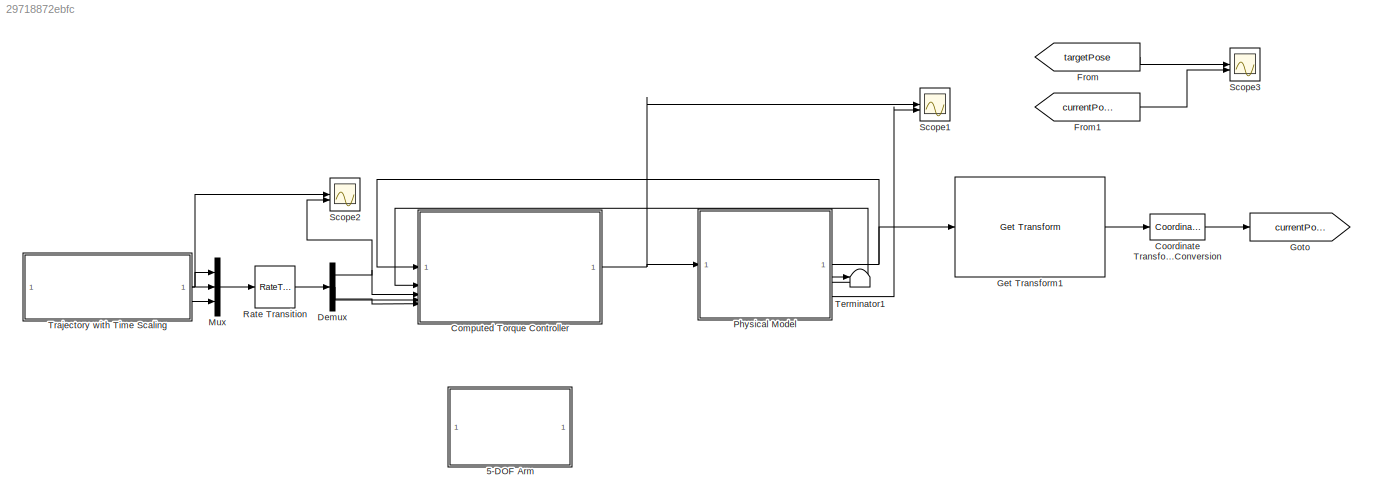
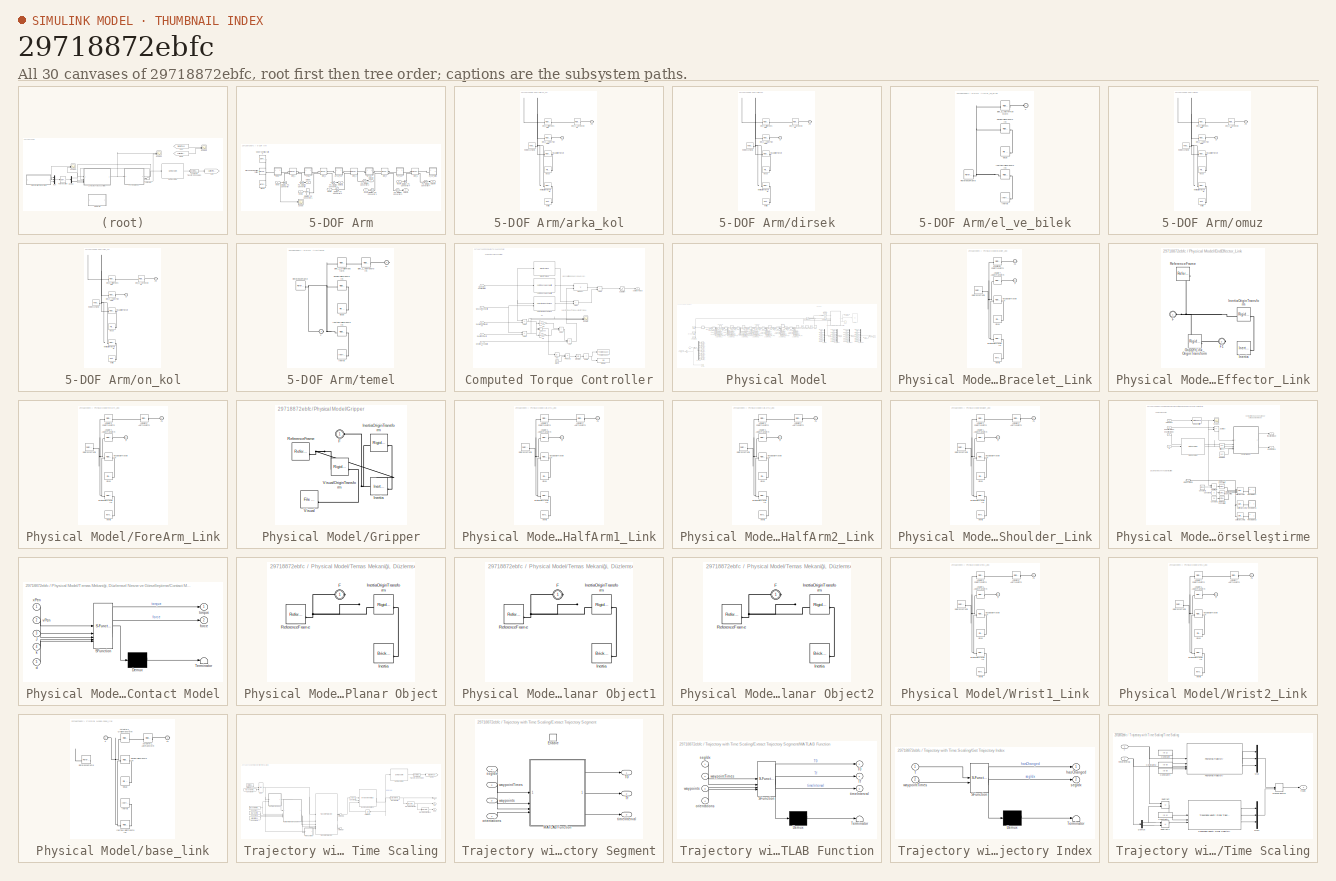
[diagram: thumbnail index - all 30 canvases of the model, root first then tree order]
MODEL slx_29718872ebfc
KIND model
CONFIG AbsTol = auto
CONFIG EnableMultiTasking = off
CONFIG FixedStep = 0.01
CONFIG MaxStep = auto
CONFIG MinStep = auto
CONFIG RelTol = 1e-3
CONFIG SampleTimeConstraint = Unconstrained
CONFIG SolverName = VariableStepAuto
CONFIG StartTime = 0.0
CONFIG StopTime = 48
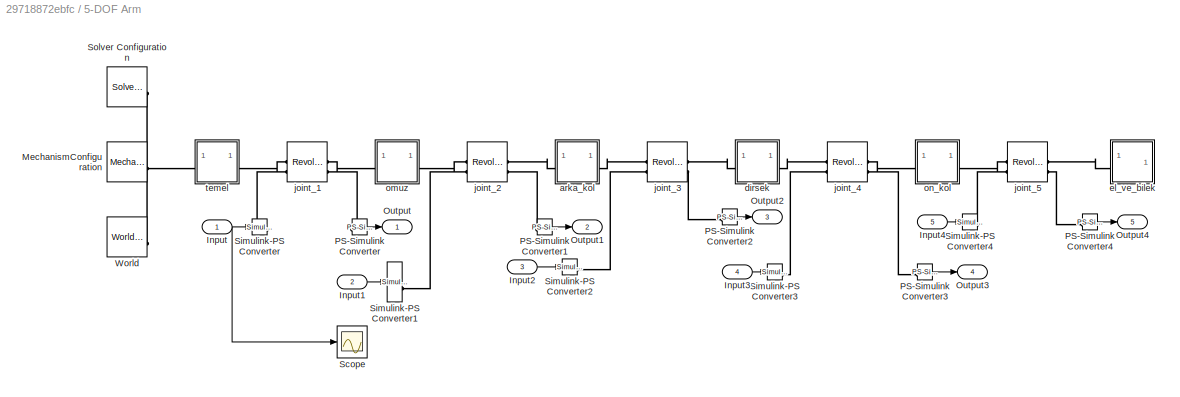
BLOCK [SubSystem] 5-DOF Arm
BLOCK [Inport] 5-DOF Arm/Input
BLOCK [Inport] 5-DOF Arm/Input1
  Port = 2
BLOCK [Inport] 5-DOF Arm/Input2
  Port = 3
BLOCK [Inport] 5-DOF Arm/Input3
  Port = 4
BLOCK [Inport] 5-DOF Arm/Input4
  Port = 5
BLOCK [Reference] 5-DOF Arm/MechanismConfiguration  REF=sm_lib/Utilities/Mechanism
Configuration
  SourceBlock = sm_lib/Utilities/Mechanism\nConfiguration
  SourceType = Mechanism\nConfiguration
BLOCK [Outport] 5-DOF Arm/Output
BLOCK [Outport] 5-DOF Arm/Output1
  Port = 2
BLOCK [Outport] 5-DOF Arm/Output2
  Port = 3
BLOCK [Outport] 5-DOF Arm/Output3
  Port = 4
BLOCK [Outport] 5-DOF Arm/Output4
  Port = 5
BLOCK [Reference] 5-DOF Arm/PS-Simulink Converter  REF=nesl_utility/PS-Simulink
Converter
  SourceBlock = nesl_utility/PS-Simulink\nConverter
  SourceType = PS-Simulink\nConverter
BLOCK [Reference] 5-DOF Arm/PS-Simulink Converter1  REF=nesl_utility/PS-Simulink
Converter
  SourceBlock = nesl_utility/PS-Simulink\nConverter
  SourceType = PS-Simulink\nConverter
BLOCK [Reference] 5-DOF Arm/PS-Simulink Converter2  REF=nesl_utility/PS-Simulink
Converter
  SourceBlock = nesl_utility/PS-Simulink\nConverter
  SourceType = PS-Simulink\nConverter
BLOCK [Reference] 5-DOF Arm/PS-Simulink Converter3  REF=nesl_utility/PS-Simulink
Converter
  SourceBlock = nesl_utility/PS-Simulink\nConverter
  SourceType = PS-Simulink\nConverter
BLOCK [Reference] 5-DOF Arm/PS-Simulink Converter4  REF=nesl_utility/PS-Simulink
Converter
  SourceBlock = nesl_utility/PS-Simulink\nConverter
  SourceType = PS-Simulink\nConverter
BLOCK [Scope] 5-DOF Arm/Scope
  Floating = off
  NumInputPorts = 1
  ScopeSpecificationString = Simulink.scopes.TimeScopeBlockCfg('CurrentConfiguration', extmgr.ConfigurationSet(extmgr.Configuration('Core','General UI',true),extmgr.Configuration('Core','Source UI',true),extmgr.Configuration('Sources','WiredSimulink',true,'DataLoggingVariableName','ScopeData1'),extmgr.Configuration('Visuals','Time Domain',true,'SerializedDisplays',{struct('MinYLimReal','0.00006215','MaxYLimReal','0.00006249',...<+1438ch>
BLOCK [Reference] 5-DOF Arm/Simulink-PS Converter  REF=nesl_utility/Simulink-PS
Converter
  SourceBlock = nesl_utility/Simulink-PS\nConverter
  SourceType = Simulink-PS\nConverter
BLOCK [Reference] 5-DOF Arm/Simulink-PS Converter1  REF=nesl_utility/Simulink-PS
Converter
  SourceBlock = nesl_utility/Simulink-PS\nConverter
  SourceType = Simulink-PS\nConverter
BLOCK [Reference] 5-DOF Arm/Simulink-PS Converter2  REF=nesl_utility/Simulink-PS
Converter
  SourceBlock = nesl_utility/Simulink-PS\nConverter
  SourceType = Simulink-PS\nConverter
BLOCK [Reference] 5-DOF Arm/Simulink-PS Converter3  REF=nesl_utility/Simulink-PS
Converter
  SourceBlock = nesl_utility/Simulink-PS\nConverter
  SourceType = Simulink-PS\nConverter
BLOCK [Reference] 5-DOF Arm/Simulink-PS Converter4  REF=nesl_utility/Simulink-PS
Converter
  SourceBlock = nesl_utility/Simulink-PS\nConverter
  SourceType = Simulink-PS\nConverter
BLOCK [Reference] 5-DOF Arm/Solver Configuration  REF=nesl_utility/Solver
Configuration
  SourceBlock = nesl_utility/Solver\nConfiguration
  SourceType = Solver\nConfiguration
BLOCK [Reference] 5-DOF Arm/World  REF=sm_lib/Frames and
Transforms/World Frame
  SourceBlock = sm_lib/Frames and\nTransforms/World Frame
  SourceType = World Frame
BLOCK [SubSystem] 5-DOF Arm/arka_kol
BLOCK [PMIOPort] 5-DOF Arm/arka_kol/F
  Side = Left
BLOCK [PMIOPort] 5-DOF Arm/arka_kol/F1
  Port = 2
  Side = Right
BLOCK [Reference] 5-DOF Arm/arka_kol/Inertia  REF=sm_lib/Body Elements/Inertia
  SourceBlock = sm_lib/Body Elements/Inertia
  SourceType = Inertia
BLOCK [Reference] 5-DOF Arm/arka_kol/InertiaOriginTransform  REF=sm_lib/Frames and
Transforms/Rigid
Transform
  SourceBlock = sm_lib/Frames and\nTransforms/Rigid\nTransform
  SourceType = Rigid\nTransform
BLOCK [Reference] 5-DOF Arm/arka_kol/ReferenceFrame  REF=sm_lib/Frames and
Transforms/Reference
Frame
  SourceBlock = sm_lib/Frames and\nTransforms/Reference\nFrame
  SourceType = Reference\nFrame
BLOCK [Reference] 5-DOF Arm/arka_kol/Visual  REF=sm_lib/Body Elements/File Solid
  SourceBlock = sm_lib/Body Elements/File Solid
  SourceType = File Solid
BLOCK [Reference] 5-DOF Arm/arka_kol/VisualOriginTransform  REF=sm_lib/Frames and
Transforms/Rigid
Transform
  SourceBlock = sm_lib/Frames and\nTransforms/Rigid\nTransform
  SourceType = Rigid\nTransform
BLOCK [Reference] 5-DOF Arm/arka_kol/joint_2_AxisInvTransform  REF=sm_lib/Frames and
Transforms/Rigid
Transform
  SourceBlock = sm_lib/Frames and\nTransforms/Rigid\nTransform
  SourceType = Rigid\nTransform
BLOCK [Reference] 5-DOF Arm/arka_kol/joint_3_AxisTransform  REF=sm_lib/Frames and
Transforms/Rigid
Transform
  SourceBlock = sm_lib/Frames and\nTransforms/Rigid\nTransform
  SourceType = Rigid\nTransform
BLOCK [Reference] 5-DOF Arm/arka_kol/joint_3_OriginTransform  REF=sm_lib/Frames and
Transforms/Rigid
Transform
  SourceBlock = sm_lib/Frames and\nTransforms/Rigid\nTransform
  SourceType = Rigid\nTransform
BLOCK [SubSystem] 5-DOF Arm/dirsek
BLOCK [PMIOPort] 5-DOF Arm/dirsek/F
  Side = Left
BLOCK [PMIOPort] 5-DOF Arm/dirsek/F1
  Port = 2
  Side = Right
BLOCK [Reference] 5-DOF Arm/dirsek/Inertia  REF=sm_lib/Body Elements/Inertia
  SourceBlock = sm_lib/Body Elements/Inertia
  SourceType = Inertia
BLOCK [Reference] 5-DOF Arm/dirsek/InertiaOriginTransform  REF=sm_lib/Frames and
Transforms/Rigid
Transform
  SourceBlock = sm_lib/Frames and\nTransforms/Rigid\nTransform
  SourceType = Rigid\nTransform
BLOCK [Reference] 5-DOF Arm/dirsek/ReferenceFrame  REF=sm_lib/Frames and
Transforms/Reference
Frame
  SourceBlock = sm_lib/Frames and\nTransforms/Reference\nFrame
  SourceType = Reference\nFrame
BLOCK [Reference] 5-DOF Arm/dirsek/Visual  REF=sm_lib/Body Elements/File Solid
  SourceBlock = sm_lib/Body Elements/File Solid
  SourceType = File Solid
BLOCK [Reference] 5-DOF Arm/dirsek/VisualOriginTransform  REF=sm_lib/Frames and
Transforms/Rigid
Transform
  SourceBlock = sm_lib/Frames and\nTransforms/Rigid\nTransform
  SourceType = Rigid\nTransform
BLOCK [Reference] 5-DOF Arm/dirsek/joint_3_AxisInvTransform  REF=sm_lib/Frames and
Transforms/Rigid
Transform
  SourceBlock = sm_lib/Frames and\nTransforms/Rigid\nTransform
  SourceType = Rigid\nTransform
BLOCK [Reference] 5-DOF Arm/dirsek/joint_4_AxisTransform  REF=sm_lib/Frames and
Transforms/Rigid
Transform
  SourceBlock = sm_lib/Frames and\nTransforms/Rigid\nTransform
  SourceType = Rigid\nTransform
BLOCK [Reference] 5-DOF Arm/dirsek/joint_4_OriginTransform  REF=sm_lib/Frames and
Transforms/Rigid
Transform
  SourceBlock = sm_lib/Frames and\nTransforms/Rigid\nTransform
  SourceType = Rigid\nTransform
BLOCK [SubSystem] 5-DOF Arm/el_ve_bilek
BLOCK [PMIOPort] 5-DOF Arm/el_ve_bilek/F
  Side = Left
BLOCK [Reference] 5-DOF Arm/el_ve_bilek/Inertia  REF=sm_lib/Body Elements/Inertia
  SourceBlock = sm_lib/Body Elements/Inertia
  SourceType = Inertia
BLOCK [Reference] 5-DOF Arm/el_ve_bilek/InertiaOriginTransform  REF=sm_lib/Frames and
Transforms/Rigid
Transform
  SourceBlock = sm_lib/Frames and\nTransforms/Rigid\nTransform
  SourceType = Rigid\nTransform
BLOCK [Reference] 5-DOF Arm/el_ve_bilek/ReferenceFrame  REF=sm_lib/Frames and
Transforms/Reference
Frame
  SourceBlock = sm_lib/Frames and\nTransforms/Reference\nFrame
  SourceType = Reference\nFrame
BLOCK [Reference] 5-DOF Arm/el_ve_bilek/Visual  REF=sm_lib/Body Elements/File Solid
  SourceBlock = sm_lib/Body Elements/File Solid
  SourceType = File Solid
BLOCK [Reference] 5-DOF Arm/el_ve_bilek/VisualOriginTransform  REF=sm_lib/Frames and
Transforms/Rigid
Transform
  SourceBlock = sm_lib/Frames and\nTransforms/Rigid\nTransform
  SourceType = Rigid\nTransform
BLOCK [Reference] 5-DOF Arm/el_ve_bilek/joint_5_AxisInvTransform  REF=sm_lib/Frames and
Transforms/Rigid
Transform
  SourceBlock = sm_lib/Frames and\nTransforms/Rigid\nTransform
  SourceType = Rigid\nTransform
BLOCK [Reference] 5-DOF Arm/joint_1  REF=sm_lib/Joints/Revolute Joint
  SourceBlock = sm_lib/Joints/Revolute Joint
  SourceType = Revolute Joint
BLOCK [Reference] 5-DOF Arm/joint_2  REF=sm_lib/Joints/Revolute Joint
  SourceBlock = sm_lib/Joints/Revolute Joint
  SourceType = Revolute Joint
BLOCK [Reference] 5-DOF Arm/joint_3  REF=sm_lib/Joints/Revolute Joint
  SourceBlock = sm_lib/Joints/Revolute Joint
  SourceType = Revolute Joint
BLOCK [Reference] 5-DOF Arm/joint_4  REF=sm_lib/Joints/Revolute Joint
  SourceBlock = sm_lib/Joints/Revolute Joint
  SourceType = Revolute Joint
BLOCK [Reference] 5-DOF Arm/joint_5  REF=sm_lib/Joints/Revolute Joint
  SourceBlock = sm_lib/Joints/Revolute Joint
  SourceType = Revolute Joint
BLOCK [SubSystem] 5-DOF Arm/omuz
BLOCK [PMIOPort] 5-DOF Arm/omuz/F
  Side = Left
BLOCK [PMIOPort] 5-DOF Arm/omuz/F1
  Port = 2
  Side = Right
BLOCK [Reference] 5-DOF Arm/omuz/Inertia  REF=sm_lib/Body Elements/Inertia
  SourceBlock = sm_lib/Body Elements/Inertia
  SourceType = Inertia
BLOCK [Reference] 5-DOF Arm/omuz/InertiaOriginTransform  REF=sm_lib/Frames and
Transforms/Rigid
Transform
  SourceBlock = sm_lib/Frames and\nTransforms/Rigid\nTransform
  SourceType = Rigid\nTransform
BLOCK [Reference] 5-DOF Arm/omuz/ReferenceFrame  REF=sm_lib/Frames and
Transforms/Reference
Frame
  SourceBlock = sm_lib/Frames and\nTransforms/Reference\nFrame
  SourceType = Reference\nFrame
BLOCK [Reference] 5-DOF Arm/omuz/Visual  REF=sm_lib/Body Elements/File Solid
  SourceBlock = sm_lib/Body Elements/File Solid
  SourceType = File Solid
BLOCK [Reference] 5-DOF Arm/omuz/VisualOriginTransform  REF=sm_lib/Frames and
Transforms/Rigid
Transform
  SourceBlock = sm_lib/Frames and\nTransforms/Rigid\nTransform
  SourceType = Rigid\nTransform
BLOCK [Reference] 5-DOF Arm/omuz/joint_1_AxisInvTransform  REF=sm_lib/Frames and
Transforms/Rigid
Transform
  SourceBlock = sm_lib/Frames and\nTransforms/Rigid\nTransform
  SourceType = Rigid\nTransform
BLOCK [Reference] 5-DOF Arm/omuz/joint_2_AxisTransform  REF=sm_lib/Frames and
Transforms/Rigid
Transform
  SourceBlock = sm_lib/Frames and\nTransforms/Rigid\nTransform
  SourceType = Rigid\nTransform
BLOCK [Reference] 5-DOF Arm/omuz/joint_2_OriginTransform  REF=sm_lib/Frames and
Transforms/Rigid
Transform
  SourceBlock = sm_lib/Frames and\nTransforms/Rigid\nTransform
  SourceType = Rigid\nTransform
BLOCK [SubSystem] 5-DOF Arm/on_kol
BLOCK [PMIOPort] 5-DOF Arm/on_kol/F
  Side = Left
BLOCK [PMIOPort] 5-DOF Arm/on_kol/F1
  Port = 2
  Side = Right
BLOCK [Reference] 5-DOF Arm/on_kol/Inertia  REF=sm_lib/Body Elements/Inertia
  SourceBlock = sm_lib/Body Elements/Inertia
  SourceType = Inertia
BLOCK [Reference] 5-DOF Arm/on_kol/InertiaOriginTransform  REF=sm_lib/Frames and
Transforms/Rigid
Transform
  SourceBlock = sm_lib/Frames and\nTransforms/Rigid\nTransform
  SourceType = Rigid\nTransform
BLOCK [Reference] 5-DOF Arm/on_kol/ReferenceFrame  REF=sm_lib/Frames and
Transforms/Reference
Frame
  SourceBlock = sm_lib/Frames and\nTransforms/Reference\nFrame
  SourceType = Reference\nFrame
BLOCK [Reference] 5-DOF Arm/on_kol/Visual  REF=sm_lib/Body Elements/File Solid
  SourceBlock = sm_lib/Body Elements/File Solid
  SourceType = File Solid
BLOCK [Reference] 5-DOF Arm/on_kol/VisualOriginTransform  REF=sm_lib/Frames and
Transforms/Rigid
Transform
  SourceBlock = sm_lib/Frames and\nTransforms/Rigid\nTransform
  SourceType = Rigid\nTransform
BLOCK [Reference] 5-DOF Arm/on_kol/joint_4_AxisInvTransform  REF=sm_lib/Frames and
Transforms/Rigid
Transform
  SourceBlock = sm_lib/Frames and\nTransforms/Rigid\nTransform
  SourceType = Rigid\nTransform
BLOCK [Reference] 5-DOF Arm/on_kol/joint_5_AxisTransform  REF=sm_lib/Frames and
Transforms/Rigid
Transform
  SourceBlock = sm_lib/Frames and\nTransforms/Rigid\nTransform
  SourceType = Rigid\nTransform
BLOCK [Reference] 5-DOF Arm/on_kol/joint_5_OriginTransform  REF=sm_lib/Frames and
Transforms/Rigid
Transform
  SourceBlock = sm_lib/Frames and\nTransforms/Rigid\nTransform
  SourceType = Rigid\nTransform
BLOCK [SubSystem] 5-DOF Arm/temel
BLOCK [PMIOPort] 5-DOF Arm/temel/F
  Side = Left
BLOCK [PMIOPort] 5-DOF Arm/temel/F1
  Port = 2
  Side = Right
BLOCK [Reference] 5-DOF Arm/temel/Inertia  REF=sm_lib/Body Elements/Inertia
  SourceBlock = sm_lib/Body Elements/Inertia
  SourceType = Inertia
BLOCK [Reference] 5-DOF Arm/temel/InertiaOriginTransform  REF=sm_lib/Frames and
Transforms/Rigid
Transform
  SourceBlock = sm_lib/Frames and\nTransforms/Rigid\nTransform
  SourceType = Rigid\nTransform
BLOCK [Reference] 5-DOF Arm/temel/ReferenceFrame  REF=sm_lib/Frames and
Transforms/Reference
Frame
  SourceBlock = sm_lib/Frames and\nTransforms/Reference\nFrame
  SourceType = Reference\nFrame
BLOCK [Reference] 5-DOF Arm/temel/Visual  REF=sm_lib/Body Elements/File Solid
  SourceBlock = sm_lib/Body Elements/File Solid
  SourceType = File Solid
BLOCK [Reference] 5-DOF Arm/temel/VisualOriginTransform  REF=sm_lib/Frames and
Transforms/Rigid
Transform
  SourceBlock = sm_lib/Frames and\nTransforms/Rigid\nTransform
  SourceType = Rigid\nTransform
BLOCK [Reference] 5-DOF Arm/temel/joint_1_AxisTransform  REF=sm_lib/Frames and
Transforms/Rigid
Transform
  SourceBlock = sm_lib/Frames and\nTransforms/Rigid\nTransform
  SourceType = Rigid\nTransform
BLOCK [Reference] 5-DOF Arm/temel/joint_1_OriginTransform  REF=sm_lib/Frames and
Transforms/Rigid
Transform
  SourceBlock = sm_lib/Frames and\nTransforms/Rigid\nTransform
  SourceType = Rigid\nTransform
BLOCK [SubSystem] Computed Torque Controller
BLOCK [Abs] Computed Torque Controller/Abs
  Commented = on
  SaturateOnIntegerOverflow = off
BLOCK [Sum] Computed Torque Controller/Add
  IconShape = rectangular
  Inputs = -+
BLOCK [Sum] Computed Torque Controller/Add1
  IconShape = rectangular
BLOCK [Sum] Computed Torque Controller/Add2
  IconShape = rectangular
  Inputs = +-
BLOCK [Sum] Computed Torque Controller/Add3
  IconShape = rectangular
  Inputs = +-
BLOCK [Sum] Computed Torque Controller/Add4
  IconShape = rectangular
BLOCK [Sum] Computed Torque Controller/Add5
  IconShape = rectangular
BLOCK [Outport] Computed Torque Controller/Applied Torque
  VectorParamsAs1DForOutWhenUnconnected = off
BLOCK [Clock] Computed Torque Controller/Clock
  Commented = on
BLOCK [Inport] Computed Torque Controller/Desired Acceleration
  Port = 5
BLOCK [Inport] Computed Torque Controller/Desired Configuration
  Port = 3
BLOCK [Inport] Computed Torque Controller/Desired Velocity
  Port = 4
BLOCK [Display] Computed Torque Controller/Display
  Commented = on
  Decimation = 1
BLOCK [Reference] Computed Torque Controller/Gravity Torque  REF=robotmaniplib/Gravity Torque
  SourceBlock = robotmaniplib/Gravity Torque
  SourceType = Gravity Torque
BLOCK [Integrator] Computed Torque Controller/Integrator
  Commented = on
BLOCK [Reference] Computed Torque Controller/Joint Space Mass Matrix  REF=robotmaniplib/Joint Space Mass Matrix
  SourceBlock = robotmaniplib/Joint Space Mass Matrix
  SourceType = Joint Space Mass Matrix
BLOCK [Gain] Computed Torque Controller/Kd
  Gain = K(2)
BLOCK [Gain] Computed Torque Controller/Kp
  Gain = K(1)
BLOCK [Inport] Computed Torque Controller/Measured Configuration
  NameLocation = top
BLOCK [Inport] Computed Torque Controller/Measured Velocities
  Port = 2
BLOCK [Product] Computed Torque Controller/Product
  Multiplication = Matrix(*)
BLOCK [Product] Computed Torque Controller/Product1
  Commented = on
BLOCK [Saturate] Computed Torque Controller/Saturation
  LowerLimit = -100
  UpperLimit = 100
BLOCK [Scope] Computed Torque Controller/Scope
  Floating = off
  NumInputPorts = 3
  ScopeSpecificationString = Simulink.scopes.TimeScopeBlockCfg('CurrentConfiguration', extmgr.ConfigurationSet(extmgr.Configuration('Core','General UI',true),extmgr.Configuration('Core','Source UI',true),extmgr.Configuration('Sources','WiredSimulink',true,'DataLoggingVariableName','ScopeData2'),extmgr.Configuration('Visuals','Time Domain',true,'SerializedDisplays',{struct('MinYLimReal','-346932123326328320.00000','MaxYLimReal...<+2242ch>
BLOCK [Sum] Computed Torque Controller/Sum
  IconShape = rectangular
BLOCK [Sum] Computed Torque Controller/Sum1
  Commented = on
  IconShape = rectangular
  Inputs = +
BLOCK [ToWorkspace] Computed Torque Controller/To Workspace
  Commented = on
  FixptAsFi = on
  MaxDataPoints = inf
  SampleTime = -1
  Save2DSignal = 2-D array (concatenate along first dimension)
  VariableName = ITAE
BLOCK [Reference] Computed Torque Controller/Velocity Product Torque  REF=robotmaniplib/Velocity Product Torque
  SourceBlock = robotmaniplib/Velocity Product Torque
  SourceType = Velocity Product Torque
BLOCK [Reference] Coordinate Transformation Conversion  REF=robotcorelib/Coordinate Transformation Conversion
  LibrarySourceBlock = navlib/Utilities/Coordinate Transformation Conversion
  SourceBlock = robotcorelib/Coordinate Transformation Conversion
  SourceType = robotics.slcore.internal.block.CoordinateTransformationConversion
BLOCK [Demux] Demux
  Outputs = 3
BLOCK [From] From
  GotoTag = targetPose
  TagVisibility = global
BLOCK [From] From1
  GotoTag = currentPose
BLOCK [Reference] Get Transform1  REF=robotmaniplib/Get Transform
  SourceBlock = robotmaniplib/Get Transform
  SourceType = Get Transform
BLOCK [Goto] Goto
  GotoTag = currentPose
BLOCK [Mux] Mux
  DisplayOption = bar
  Inputs = 3
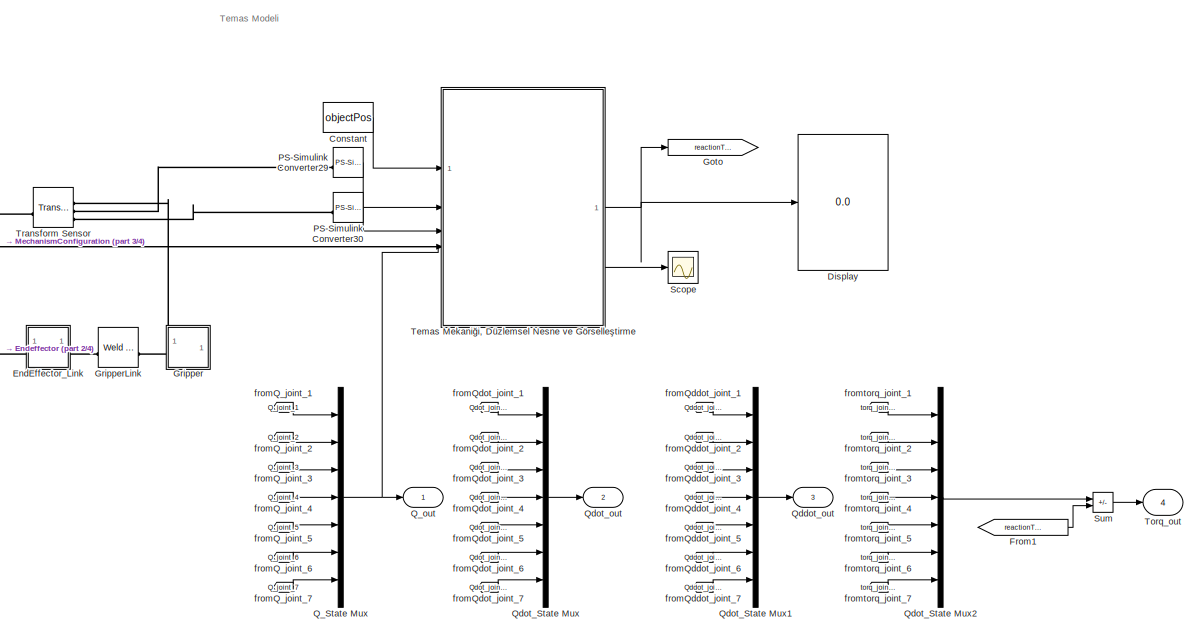
[diagram: Physical Model - part 1/4, top right region]
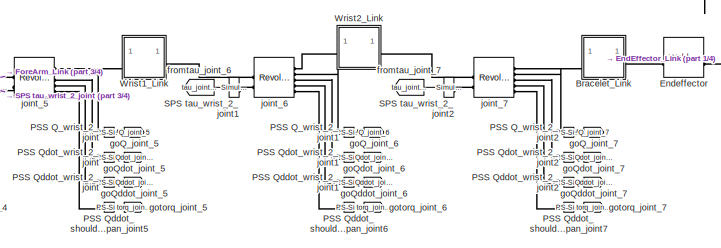
[diagram: Physical Model - part 2/4, central region]
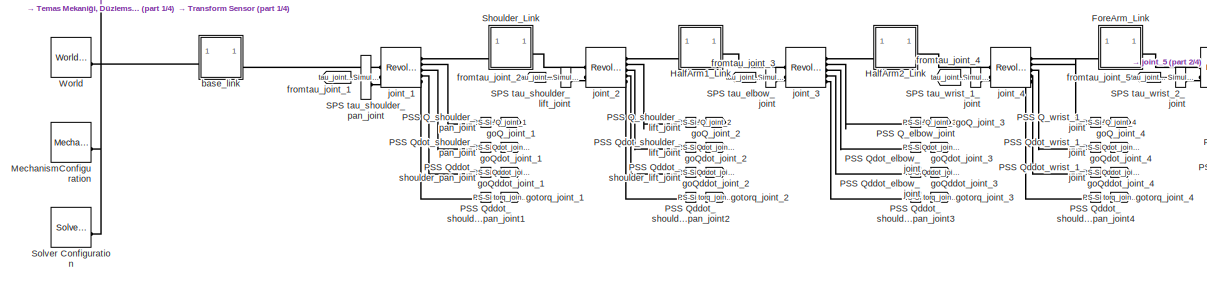
[diagram: Physical Model - part 3/4, middle left region]
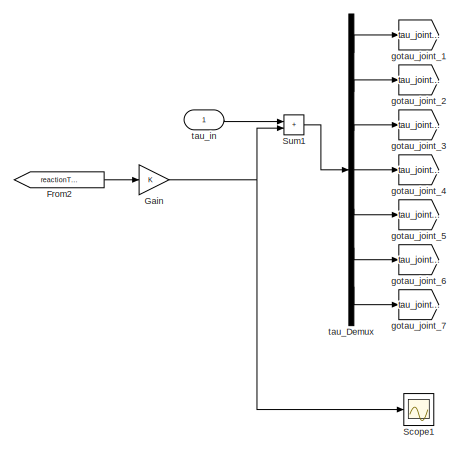
[diagram: Physical Model - part 4/4, bottom left region]
BLOCK [SubSystem] Physical Model
BLOCK [SubSystem] Physical Model/Bracelet_Link
BLOCK [Reference] Physical Model/Bracelet_Link/Actuator7_AxisInvTransform  REF=sm_lib/Frames and
Transforms/Rigid
Transform
  SourceBlock = sm_lib/Frames and\nTransforms/Rigid\nTransform
  SourceType = Rigid\nTransform
BLOCK [Reference] Physical Model/Bracelet_Link/Endeffector_OriginTransform  REF=sm_lib/Frames and
Transforms/Rigid
Transform
  SourceBlock = sm_lib/Frames and\nTransforms/Rigid\nTransform
  SourceType = Rigid\nTransform
BLOCK [PMIOPort] Physical Model/Bracelet_Link/F
  Side = Left
BLOCK [PMIOPort] Physical Model/Bracelet_Link/F1
  Port = 2
  Side = Right
BLOCK [Reference] Physical Model/Bracelet_Link/Inertia  REF=sm_lib/Body Elements/Inertia
  SourceBlock = sm_lib/Body Elements/Inertia
  SourceType = Inertia
BLOCK [Reference] Physical Model/Bracelet_Link/InertiaOriginTransform  REF=sm_lib/Frames and
Transforms/Rigid
Transform
  SourceBlock = sm_lib/Frames and\nTransforms/Rigid\nTransform
  SourceType = Rigid\nTransform
BLOCK [Reference] Physical Model/Bracelet_Link/ReferenceFrame  REF=sm_lib/Frames and
Transforms/Reference
Frame
  SourceBlock = sm_lib/Frames and\nTransforms/Reference\nFrame
  SourceType = Reference\nFrame
BLOCK [Reference] Physical Model/Bracelet_Link/Visual  REF=sm_lib/Body Elements/File Solid
  SourceBlock = sm_lib/Body Elements/File Solid
  SourceType = File Solid
BLOCK [Reference] Physical Model/Bracelet_Link/VisualOriginTransform  REF=sm_lib/Frames and
Transforms/Rigid
Transform
  SourceBlock = sm_lib/Frames and\nTransforms/Rigid\nTransform
  SourceType = Rigid\nTransform
BLOCK [Constant] Physical Model/Constant
  Value = objectPos
BLOCK [Display] Physical Model/Display
  Decimation = 1
BLOCK [SubSystem] Physical Model/EndEffector_Link
BLOCK [PMIOPort] Physical Model/EndEffector_Link/F
  Side = Left
BLOCK [PMIOPort] Physical Model/EndEffector_Link/F1
  Port = 2
  Side = Right
BLOCK [Reference] Physical Model/EndEffector_Link/GripperLink_OriginTransform  REF=sm_lib/Frames and
Transforms/Rigid
Transform
  SourceBlock = sm_lib/Frames and\nTransforms/Rigid\nTransform
  SourceType = Rigid\nTransform
BLOCK [Reference] Physical Model/EndEffector_Link/Inertia  REF=sm_lib/Body Elements/Inertia
  SourceBlock = sm_lib/Body Elements/Inertia
  SourceType = Inertia
BLOCK [Reference] Physical Model/EndEffector_Link/InertiaOriginTransform  REF=sm_lib/Frames and
Transforms/Rigid
Transform
  SourceBlock = sm_lib/Frames and\nTransforms/Rigid\nTransform
  SourceType = Rigid\nTransform
BLOCK [Reference] Physical Model/EndEffector_Link/ReferenceFrame  REF=sm_lib/Frames and
Transforms/Reference
Frame
  SourceBlock = sm_lib/Frames and\nTransforms/Reference\nFrame
  SourceType = Reference\nFrame
BLOCK [Reference] Physical Model/Endeffector  REF=sm_lib/Joints/Weld Joint
  SourceBlock = sm_lib/Joints/Weld Joint
  SourceType = Weld Joint
BLOCK [SubSystem] Physical Model/ForeArm_Link
BLOCK [Reference] Physical Model/ForeArm_Link/Actuator4_AxisInvTransform  REF=sm_lib/Frames and
Transforms/Rigid
Transform
  SourceBlock = sm_lib/Frames and\nTransforms/Rigid\nTransform
  SourceType = Rigid\nTransform
BLOCK [Reference] Physical Model/ForeArm_Link/Actuator5_AxisTransform  REF=sm_lib/Frames and
Transforms/Rigid
Transform
  SourceBlock = sm_lib/Frames and\nTransforms/Rigid\nTransform
  SourceType = Rigid\nTransform
BLOCK [Reference] Physical Model/ForeArm_Link/Actuator5_OriginTransform  REF=sm_lib/Frames and
Transforms/Rigid
Transform
  SourceBlock = sm_lib/Frames and\nTransforms/Rigid\nTransform
  SourceType = Rigid\nTransform
BLOCK [PMIOPort] Physical Model/ForeArm_Link/F
  Side = Left
BLOCK [PMIOPort] Physical Model/ForeArm_Link/F1
  Port = 2
  Side = Right
BLOCK [Reference] Physical Model/ForeArm_Link/Inertia  REF=sm_lib/Body Elements/Inertia
  SourceBlock = sm_lib/Body Elements/Inertia
  SourceType = Inertia
BLOCK [Reference] Physical Model/ForeArm_Link/InertiaOriginTransform  REF=sm_lib/Frames and
Transforms/Rigid
Transform
  SourceBlock = sm_lib/Frames and\nTransforms/Rigid\nTransform
  SourceType = Rigid\nTransform
BLOCK [Reference] Physical Model/ForeArm_Link/ReferenceFrame  REF=sm_lib/Frames and
Transforms/Reference
Frame
  SourceBlock = sm_lib/Frames and\nTransforms/Reference\nFrame
  SourceType = Reference\nFrame
BLOCK [Reference] Physical Model/ForeArm_Link/Visual  REF=sm_lib/Body Elements/File Solid
  SourceBlock = sm_lib/Body Elements/File Solid
  SourceType = File Solid
BLOCK [Reference] Physical Model/ForeArm_Link/VisualOriginTransform  REF=sm_lib/Frames and
Transforms/Rigid
Transform
  SourceBlock = sm_lib/Frames and\nTransforms/Rigid\nTransform
  SourceType = Rigid\nTransform
BLOCK [From] Physical Model/From1
  GotoTag = reactionTorque
BLOCK [From] Physical Model/From2
  GotoTag = reactionTorque
BLOCK [Gain] Physical Model/Gain
BLOCK [Goto] Physical Model/Goto
  GotoTag = reactionTorque
BLOCK [SubSystem] Physical Model/Gripper
BLOCK [PMIOPort] Physical Model/Gripper/F
  Side = Left
BLOCK [Reference] Physical Model/Gripper/Inertia  REF=sm_lib/Body Elements/Inertia
  SourceBlock = sm_lib/Body Elements/Inertia
  SourceType = Inertia
BLOCK [Reference] Physical Model/Gripper/InertiaOriginTransform  REF=sm_lib/Frames and
Transforms/Rigid
Transform
  SourceBlock = sm_lib/Frames and\nTransforms/Rigid\nTransform
  SourceType = Rigid\nTransform
BLOCK [Reference] Physical Model/Gripper/ReferenceFrame  REF=sm_lib/Frames and
Transforms/Reference
Frame
  SourceBlock = sm_lib/Frames and\nTransforms/Reference\nFrame
  SourceType = Reference\nFrame
BLOCK [Reference] Physical Model/Gripper/Visual  REF=sm_lib/Body Elements/File Solid
  SourceBlock = sm_lib/Body Elements/File Solid
  SourceType = File Solid
BLOCK [Reference] Physical Model/Gripper/VisualOriginTransform  REF=sm_lib/Frames and
Transforms/Rigid
Transform
  SourceBlock = sm_lib/Frames and\nTransforms/Rigid\nTransform
  SourceType = Rigid\nTransform
BLOCK [Reference] Physical Model/GripperLink  REF=sm_lib/Joints/Weld Joint
  SourceBlock = sm_lib/Joints/Weld Joint
  SourceType = Weld Joint
BLOCK [SubSystem] Physical Model/HalfArm1_Link
BLOCK [Reference] Physical Model/HalfArm1_Link/Actuator2_AxisInvTransform  REF=sm_lib/Frames and
Transforms/Rigid
Transform
  SourceBlock = sm_lib/Frames and\nTransforms/Rigid\nTransform
  SourceType = Rigid\nTransform
BLOCK [Reference] Physical Model/HalfArm1_Link/Actuator3_AxisTransform  REF=sm_lib/Frames and
Transforms/Rigid
Transform
  SourceBlock = sm_lib/Frames and\nTransforms/Rigid\nTransform
  SourceType = Rigid\nTransform
BLOCK [Reference] Physical Model/HalfArm1_Link/Actuator3_OriginTransform  REF=sm_lib/Frames and
Transforms/Rigid
Transform
  SourceBlock = sm_lib/Frames and\nTransforms/Rigid\nTransform
  SourceType = Rigid\nTransform
BLOCK [PMIOPort] Physical Model/HalfArm1_Link/F
  Side = Left
BLOCK [PMIOPort] Physical Model/HalfArm1_Link/F1
  Port = 2
  Side = Right
BLOCK [Reference] Physical Model/HalfArm1_Link/Inertia  REF=sm_lib/Body Elements/Inertia
  SourceBlock = sm_lib/Body Elements/Inertia
  SourceType = Inertia
BLOCK [Reference] Physical Model/HalfArm1_Link/InertiaOriginTransform  REF=sm_lib/Frames and
Transforms/Rigid
Transform
  SourceBlock = sm_lib/Frames and\nTransforms/Rigid\nTransform
  SourceType = Rigid\nTransform
BLOCK [Reference] Physical Model/HalfArm1_Link/ReferenceFrame  REF=sm_lib/Frames and
Transforms/Reference
Frame
  SourceBlock = sm_lib/Frames and\nTransforms/Reference\nFrame
  SourceType = Reference\nFrame
BLOCK [Reference] Physical Model/HalfArm1_Link/Visual  REF=sm_lib/Body Elements/File Solid
  SourceBlock = sm_lib/Body Elements/File Solid
  SourceType = File Solid
BLOCK [Reference] Physical Model/HalfArm1_Link/VisualOriginTransform  REF=sm_lib/Frames and
Transforms/Rigid
Transform
  SourceBlock = sm_lib/Frames and\nTransforms/Rigid\nTransform
  SourceType = Rigid\nTransform
BLOCK [SubSystem] Physical Model/HalfArm2_Link
BLOCK [Reference] Physical Model/HalfArm2_Link/Actuator3_AxisInvTransform  REF=sm_lib/Frames and
Transforms/Rigid
Transform
  SourceBlock = sm_lib/Frames and\nTransforms/Rigid\nTransform
  SourceType = Rigid\nTransform
BLOCK [Reference] Physical Model/HalfArm2_Link/Actuator4_AxisTransform  REF=sm_lib/Frames and
Transforms/Rigid
Transform
  SourceBlock = sm_lib/Frames and\nTransforms/Rigid\nTransform
  SourceType = Rigid\nTransform
BLOCK [Reference] Physical Model/HalfArm2_Link/Actuator4_OriginTransform  REF=sm_lib/Frames and
Transforms/Rigid
Transform
  SourceBlock = sm_lib/Frames and\nTransforms/Rigid\nTransform
  SourceType = Rigid\nTransform
BLOCK [PMIOPort] Physical Model/HalfArm2_Link/F
  Side = Left
BLOCK [PMIOPort] Physical Model/HalfArm2_Link/F1
  Port = 2
  Side = Right
BLOCK [Reference] Physical Model/HalfArm2_Link/Inertia  REF=sm_lib/Body Elements/Inertia
  SourceBlock = sm_lib/Body Elements/Inertia
  SourceType = Inertia
BLOCK [Reference] Physical Model/HalfArm2_Link/InertiaOriginTransform  REF=sm_lib/Frames and
Transforms/Rigid
Transform
  SourceBlock = sm_lib/Frames and\nTransforms/Rigid\nTransform
  SourceType = Rigid\nTransform
BLOCK [Reference] Physical Model/HalfArm2_Link/ReferenceFrame  REF=sm_lib/Frames and
Transforms/Reference
Frame
  SourceBlock = sm_lib/Frames and\nTransforms/Reference\nFrame
  SourceType = Reference\nFrame
BLOCK [Reference] Physical Model/HalfArm2_Link/Visual  REF=sm_lib/Body Elements/File Solid
  SourceBlock = sm_lib/Body Elements/File Solid
  SourceType = File Solid
BLOCK [Reference] Physical Model/HalfArm2_Link/VisualOriginTransform  REF=sm_lib/Frames and
Transforms/Rigid
Transform
  SourceBlock = sm_lib/Frames and\nTransforms/Rigid\nTransform
  SourceType = Rigid\nTransform
BLOCK [Reference] Physical Model/MechanismConfiguration  REF=sm_lib/Utilities/Mechanism
Configuration
  SourceBlock = sm_lib/Utilities/Mechanism\nConfiguration
  SourceType = Mechanism\nConfiguration
BLOCK [Reference] Physical Model/PS-Simulink Converter29  REF=nesl_utility/PS-Simulink
Converter
  SourceBlock = nesl_utility/PS-Simulink\nConverter
  SourceType = PS-Simulink\nConverter
BLOCK [Reference] Physical Model/PS-Simulink Converter30  REF=nesl_utility/PS-Simulink
Converter
  SourceBlock = nesl_utility/PS-Simulink\nConverter
  SourceType = PS-Simulink\nConverter
BLOCK [Reference] Physical Model/PSS Q_elbow_joint  REF=nesl_utility/PS-Simulink
Converter
  SourceBlock = nesl_utility/PS-Simulink\nConverter
  SourceType = PS-Simulink\nConverter
BLOCK [Reference] Physical Model/PSS Q_shoulder_lift_joint  REF=nesl_utility/PS-Simulink
Converter
  SourceBlock = nesl_utility/PS-Simulink\nConverter
  SourceType = PS-Simulink\nConverter
BLOCK [Reference] Physical Model/PSS Q_shoulder_pan_joint  REF=nesl_utility/PS-Simulink
Converter
  SourceBlock = nesl_utility/PS-Simulink\nConverter
  SourceType = PS-Simulink\nConverter
BLOCK [Reference] Physical Model/PSS Q_wrist_1_joint  REF=nesl_utility/PS-Simulink
Converter
  SourceBlock = nesl_utility/PS-Simulink\nConverter
  SourceType = PS-Simulink\nConverter
BLOCK [Reference] Physical Model/PSS Q_wrist_2_joint  REF=nesl_utility/PS-Simulink
Converter
  SourceBlock = nesl_utility/PS-Simulink\nConverter
  SourceType = PS-Simulink\nConverter
BLOCK [Reference] Physical Model/PSS Q_wrist_2_joint1  REF=nesl_utility/PS-Simulink
Converter
  SourceBlock = nesl_utility/PS-Simulink\nConverter
  SourceType = PS-Simulink\nConverter
BLOCK [Reference] Physical Model/PSS Q_wrist_2_joint2  REF=nesl_utility/PS-Simulink
Converter
  SourceBlock = nesl_utility/PS-Simulink\nConverter
  SourceType = PS-Simulink\nConverter
BLOCK [Reference] Physical Model/PSS Qddot_elbow_joint  REF=nesl_utility/PS-Simulink
Converter
  SourceBlock = nesl_utility/PS-Simulink\nConverter
  SourceType = PS-Simulink\nConverter
BLOCK [Reference] Physical Model/PSS Qddot_shoulder_lift_joint  REF=nesl_utility/PS-Simulink
Converter
  SourceBlock = nesl_utility/PS-Simulink\nConverter
  SourceType = PS-Simulink\nConverter
BLOCK [Reference] Physical Model/PSS Qddot_shoulder_pan_joint  REF=nesl_utility/PS-Simulink
Converter
  SourceBlock = nesl_utility/PS-Simulink\nConverter
  SourceType = PS-Simulink\nConverter
BLOCK [Reference] Physical Model/PSS Qddot_shoulder_pan_joint1  REF=nesl_utility/PS-Simulink
Converter
  SourceBlock = nesl_utility/PS-Simulink\nConverter
  SourceType = PS-Simulink\nConverter
BLOCK [Reference] Physical Model/PSS Qddot_shoulder_pan_joint2  REF=nesl_utility/PS-Simulink
Converter
  SourceBlock = nesl_utility/PS-Simulink\nConverter
  SourceType = PS-Simulink\nConverter
BLOCK [Reference] Physical Model/PSS Qddot_shoulder_pan_joint3  REF=nesl_utility/PS-Simulink
Converter
  SourceBlock = nesl_utility/PS-Simulink\nConverter
  SourceType = PS-Simulink\nConverter
BLOCK [Reference] Physical Model/PSS Qddot_shoulder_pan_joint4  REF=nesl_utility/PS-Simulink
Converter
  SourceBlock = nesl_utility/PS-Simulink\nConverter
  SourceType = PS-Simulink\nConverter
BLOCK [Reference] Physical Model/PSS Qddot_shoulder_pan_joint5  REF=nesl_utility/PS-Simulink
Converter
  SourceBlock = nesl_utility/PS-Simulink\nConverter
  SourceType = PS-Simulink\nConverter
BLOCK [Reference] Physical Model/PSS Qddot_shoulder_pan_joint6  REF=nesl_utility/PS-Simulink
Converter
  SourceBlock = nesl_utility/PS-Simulink\nConverter
  SourceType = PS-Simulink\nConverter
BLOCK [Reference] Physical Model/PSS Qddot_shoulder_pan_joint7  REF=nesl_utility/PS-Simulink
Converter
  SourceBlock = nesl_utility/PS-Simulink\nConverter
  SourceType = PS-Simulink\nConverter
BLOCK [Reference] Physical Model/PSS Qddot_wrist_1_joint  REF=nesl_utility/PS-Simulink
Converter
  SourceBlock = nesl_utility/PS-Simulink\nConverter
  SourceType = PS-Simulink\nConverter
BLOCK [Reference] Physical Model/PSS Qddot_wrist_2_joint  REF=nesl_utility/PS-Simulink
Converter
  SourceBlock = nesl_utility/PS-Simulink\nConverter
  SourceType = PS-Simulink\nConverter
BLOCK [Reference] Physical Model/PSS Qddot_wrist_2_joint1  REF=nesl_utility/PS-Simulink
Converter
  SourceBlock = nesl_utility/PS-Simulink\nConverter
  SourceType = PS-Simulink\nConverter
BLOCK [Reference] Physical Model/PSS Qddot_wrist_2_joint2  REF=nesl_utility/PS-Simulink
Converter
  SourceBlock = nesl_utility/PS-Simulink\nConverter
  SourceType = PS-Simulink\nConverter
BLOCK [Reference] Physical Model/PSS Qdot_elbow_joint  REF=nesl_utility/PS-Simulink
Converter
  SourceBlock = nesl_utility/PS-Simulink\nConverter
  SourceType = PS-Simulink\nConverter
BLOCK [Reference] Physical Model/PSS Qdot_shoulder_lift_joint  REF=nesl_utility/PS-Simulink
Converter
  SourceBlock = nesl_utility/PS-Simulink\nConverter
  SourceType = PS-Simulink\nConverter
BLOCK [Reference] Physical Model/PSS Qdot_shoulder_pan_joint  REF=nesl_utility/PS-Simulink
Converter
  SourceBlock = nesl_utility/PS-Simulink\nConverter
  SourceType = PS-Simulink\nConverter
BLOCK [Reference] Physical Model/PSS Qdot_wrist_1_joint  REF=nesl_utility/PS-Simulink
Converter
  SourceBlock = nesl_utility/PS-Simulink\nConverter
  SourceType = PS-Simulink\nConverter
BLOCK [Reference] Physical Model/PSS Qdot_wrist_2_joint  REF=nesl_utility/PS-Simulink
Converter
  SourceBlock = nesl_utility/PS-Simulink\nConverter
  SourceType = PS-Simulink\nConverter
BLOCK [Reference] Physical Model/PSS Qdot_wrist_2_joint1  REF=nesl_utility/PS-Simulink
Converter
  SourceBlock = nesl_utility/PS-Simulink\nConverter
  SourceType = PS-Simulink\nConverter
BLOCK [Reference] Physical Model/PSS Qdot_wrist_2_joint2  REF=nesl_utility/PS-Simulink
Converter
  SourceBlock = nesl_utility/PS-Simulink\nConverter
  SourceType = PS-Simulink\nConverter
BLOCK [Mux] Physical Model/Q_State Mux
  DisplayOption = bar
  Inputs = 7
BLOCK [Outport] Physical Model/Q_out
BLOCK [Outport] Physical Model/Qddot_out
  Port = 3
BLOCK [Mux] Physical Model/Qdot_State Mux
  DisplayOption = bar
  Inputs = 7
BLOCK [Mux] Physical Model/Qdot_State Mux1
  DisplayOption = bar
  Inputs = 7
BLOCK [Mux] Physical Model/Qdot_State Mux2
  DisplayOption = bar
  Inputs = 7
BLOCK [Outport] Physical Model/Qdot_out
  Port = 2
BLOCK [Reference] Physical Model/SPS tau_elbow_joint  REF=nesl_utility/Simulink-PS
Converter
  SourceBlock = nesl_utility/Simulink-PS\nConverter
  SourceType = Simulink-PS\nConverter
BLOCK [Reference] Physical Model/SPS tau_shoulder_lift_joint  REF=nesl_utility/Simulink-PS
Converter
  SourceBlock = nesl_utility/Simulink-PS\nConverter
  SourceType = Simulink-PS\nConverter
BLOCK [Reference] Physical Model/SPS tau_shoulder_pan_joint  REF=nesl_utility/Simulink-PS
Converter
  SourceBlock = nesl_utility/Simulink-PS\nConverter
  SourceType = Simulink-PS\nConverter
BLOCK [Reference] Physical Model/SPS tau_wrist_1_joint  REF=nesl_utility/Simulink-PS
Converter
  SourceBlock = nesl_utility/Simulink-PS\nConverter
  SourceType = Simulink-PS\nConverter
BLOCK [Reference] Physical Model/SPS tau_wrist_2_joint  REF=nesl_utility/Simulink-PS
Converter
  SourceBlock = nesl_utility/Simulink-PS\nConverter
  SourceType = Simulink-PS\nConverter
BLOCK [Reference] Physical Model/SPS tau_wrist_2_joint1  REF=nesl_utility/Simulink-PS
Converter
  SourceBlock = nesl_utility/Simulink-PS\nConverter
  SourceType = Simulink-PS\nConverter
BLOCK [Reference] Physical Model/SPS tau_wrist_2_joint2  REF=nesl_utility/Simulink-PS
Converter
  SourceBlock = nesl_utility/Simulink-PS\nConverter
  SourceType = Simulink-PS\nConverter
BLOCK [Scope] Physical Model/Scope
  Floating = off
  NumInputPorts = 1
  ScopeSpecificationString = Simulink.scopes.TimeScopeBlockCfg('CurrentConfiguration', extmgr.ConfigurationSet(extmgr.Configuration('Core','General UI',true),extmgr.Configuration('Core','Source UI',true),extmgr.Configuration('Sources','WiredSimulink',true,'DataLoggingVariableName','ScopeData3'),extmgr.Configuration('Visuals','Time Domain',true,'SerializedDisplays',{struct('MinYLimReal','-1176.79039','MaxYLimReal','130.75449',...<+1468ch>
BLOCK [Scope] Physical Model/Scope1
  Floating = off
  NumInputPorts = 1
  ScopeSpecificationString = Simulink.scopes.TimeScopeBlockCfg('CurrentConfiguration', extmgr.ConfigurationSet(extmgr.Configuration('Core','General UI',true),extmgr.Configuration('Core','Source UI',true),extmgr.Configuration('Sources','WiredSimulink',true,'DataLoggingVariableName','ScopeData1'),extmgr.Configuration('Visuals','Time Domain',true,'SerializedDisplays',{struct('MinYLimReal','-74.47895','MaxYLimReal','61.18261','YL...<+1498ch>
BLOCK [SubSystem] Physical Model/Shoulder_Link
BLOCK [Reference] Physical Model/Shoulder_Link/Actuator1_AxisInvTransform  REF=sm_lib/Frames and
Transforms/Rigid
Transform
  SourceBlock = sm_lib/Frames and\nTransforms/Rigid\nTransform
  SourceType = Rigid\nTransform
BLOCK [Reference] Physical Model/Shoulder_Link/Actuator2_AxisTransform  REF=sm_lib/Frames and
Transforms/Rigid
Transform
  SourceBlock = sm_lib/Frames and\nTransforms/Rigid\nTransform
  SourceType = Rigid\nTransform
BLOCK [Reference] Physical Model/Shoulder_Link/Actuator2_OriginTransform  REF=sm_lib/Frames and
Transforms/Rigid
Transform
  SourceBlock = sm_lib/Frames and\nTransforms/Rigid\nTransform
  SourceType = Rigid\nTransform
BLOCK [PMIOPort] Physical Model/Shoulder_Link/F
  Side = Left
BLOCK [PMIOPort] Physical Model/Shoulder_Link/F1
  Port = 2
  Side = Right
BLOCK [Reference] Physical Model/Shoulder_Link/Inertia  REF=sm_lib/Body Elements/Inertia
  SourceBlock = sm_lib/Body Elements/Inertia
  SourceType = Inertia
BLOCK [Reference] Physical Model/Shoulder_Link/InertiaOriginTransform  REF=sm_lib/Frames and
Transforms/Rigid
Transform
  SourceBlock = sm_lib/Frames and\nTransforms/Rigid\nTransform
  SourceType = Rigid\nTransform
BLOCK [Reference] Physical Model/Shoulder_Link/ReferenceFrame  REF=sm_lib/Frames and
Transforms/Reference
Frame
  SourceBlock = sm_lib/Frames and\nTransforms/Reference\nFrame
  SourceType = Reference\nFrame
BLOCK [Reference] Physical Model/Shoulder_Link/Visual  REF=sm_lib/Body Elements/File Solid
  SourceBlock = sm_lib/Body Elements/File Solid
  SourceType = File Solid
BLOCK [Reference] Physical Model/Shoulder_Link/VisualOriginTransform  REF=sm_lib/Frames and
Transforms/Rigid
Transform
  SourceBlock = sm_lib/Frames and\nTransforms/Rigid\nTransform
  SourceType = Rigid\nTransform
BLOCK [Reference] Physical Model/Solver Configuration  REF=nesl_utility/Solver
Configuration
  SourceBlock = nesl_utility/Solver\nConfiguration
  SourceType = Solver\nConfiguration
BLOCK [Sum] Physical Model/Sum
  IconShape = rectangular
  Inputs = +-
BLOCK [Sum] Physical Model/Sum1
  IconShape = rectangular
BLOCK [SubSystem] Physical Model/Temas Mekaniği, Düzlemsel Nesne ve Görselleştirme
BLOCK [Reference] Physical Model/Temas Mekaniği, Düzlemsel Nesne ve Görselleştirme/Cartesian Joint  REF=sm_lib/Joints/Cartesian
Joint
  SourceBlock = sm_lib/Joints/Cartesian\nJoint
  SourceType = Cartesian\nJoint
BLOCK [Reference] Physical Model/Temas Mekaniği, Düzlemsel Nesne ve Görselleştirme/Cartesian Joint1  REF=sm_lib/Joints/Cartesian
Joint
  SourceBlock = sm_lib/Joints/Cartesian\nJoint
  SourceType = Cartesian\nJoint
BLOCK [Reference] Physical Model/Temas Mekaniği, Düzlemsel Nesne ve Görselleştirme/Cartesian Joint2  REF=sm_lib/Joints/Cartesian
Joint
  SourceBlock = sm_lib/Joints/Cartesian\nJoint
  SourceType = Cartesian\nJoint
BLOCK [Constant] Physical Model/Temas Mekaniği, Düzlemsel Nesne ve Görselleştirme/Constant1
  Value = 0.4
BLOCK [Constant] Physical Model/Temas Mekaniği, Düzlemsel Nesne ve Görselleştirme/Constant2
  Value = refPos
BLOCK [Constant] Physical Model/Temas Mekaniği, Düzlemsel Nesne ve Görselleştirme/Constant3
  Value = 0
BLOCK [SubSystem] Physical Model/Temas Mekaniği, Düzlemsel Nesne ve Görselleştirme/Contact Model
  ErrorFcn = Stateflow.Translate.translate
  PermitHierarchicalResolution = ExplicitOnly
  SFBlockType = MATLAB Function
  TreatAsAtomicUnit = on
BLOCK [Demux] Physical Model/Temas Mekaniği, Düzlemsel Nesne ve Görselleştirme/Contact Model/ Demux 
  Outputs = 1
BLOCK [S-Function] Physical Model/Temas Mekaniği, Düzlemsel Nesne ve Görselleştirme/Contact Model/ SFunction 
  EnableBusSupport = on
  FunctionName = sf_sfun
  PortCounts = [5 3]
  SFcnIsStateOwnerBlock = off
  SFunctionDeploymentMode = off
  Tag = Stateflow S-Function 7
BLOCK [Terminator] Physical Model/Temas Mekaniği, Düzlemsel Nesne ve Görselleştirme/Contact Model/ Terminator 
BLOCK [Inport] Physical Model/Temas Mekaniği, Düzlemsel Nesne ve Görselleştirme/Contact Model/J
  Port = 3
BLOCK [Inport] Physical Model/Temas Mekaniği, Düzlemsel Nesne ve Görselleştirme/Contact Model/d
  Port = 5
BLOCK [Outport] Physical Model/Temas Mekaniği, Düzlemsel Nesne ve Görselleştirme/Contact Model/force
  Port = 2
  VectorParamsAs1DForOutWhenUnconnected = off
BLOCK [Inport] Physical Model/Temas Mekaniği, Düzlemsel Nesne ve Görselleştirme/Contact Model/k
  Port = 4
BLOCK [Outport] Physical Model/Temas Mekaniği, Düzlemsel Nesne ve Görselleştirme/Contact Model/torque
  VectorParamsAs1DForOutWhenUnconnected = off
BLOCK [Inport] Physical Model/Temas Mekaniği, Düzlemsel Nesne ve Görselleştirme/Contact Model/vPen
  Port = 2
BLOCK [Inport] Physical Model/Temas Mekaniği, Düzlemsel Nesne ve Görselleştirme/Contact Model/xPen
BLOCK [Constant] Physical Model/Temas Mekaniği, Düzlemsel Nesne ve Görselleştirme/Damping
  Value = 1e2
BLOCK [Reference] Physical Model/Temas Mekaniği, Düzlemsel Nesne ve Görselleştirme/Get Jacobian  REF=robotmaniplib/Get Jacobian
  SourceBlock = robotmaniplib/Get Jacobian
  SourceType = Get Jacobian
BLOCK [SubSystem] Physical Model/Temas Mekaniği, Düzlemsel Nesne ve Görselleştirme/Planar Object
BLOCK [PMIOPort] Physical Model/Temas Mekaniği, Düzlemsel Nesne ve Görselleştirme/Planar Object/F
  Side = Left
BLOCK [Reference] Physical Model/Temas Mekaniği, Düzlemsel Nesne ve Görselleştirme/Planar Object/Inertia  REF=sm_lib/Body Elements/Brick Solid
  SourceBlock = sm_lib/Body Elements/Brick Solid
  SourceType = Brick Solid
BLOCK [Reference] Physical Model/Temas Mekaniği, Düzlemsel Nesne ve Görselleştirme/Planar Object/InertiaOriginTransform  REF=sm_lib/Frames and
Transforms/Rigid
Transform
  SourceBlock = sm_lib/Frames and\nTransforms/Rigid\nTransform
  SourceType = Rigid\nTransform
BLOCK [Reference] Physical Model/Temas Mekaniği, Düzlemsel Nesne ve Görselleştirme/Planar Object/ReferenceFrame  REF=sm_lib/Frames and
Transforms/Reference
Frame
  SourceBlock = sm_lib/Frames and\nTransforms/Reference\nFrame
  SourceType = Reference\nFrame
BLOCK [SubSystem] Physical Model/Temas Mekaniği, Düzlemsel Nesne ve Görselleştirme/Planar Object1
BLOCK [PMIOPort] Physical Model/Temas Mekaniği, Düzlemsel Nesne ve Görselleştirme/Planar Object1/F
  Side = Left
BLOCK [Reference] Physical Model/Temas Mekaniği, Düzlemsel Nesne ve Görselleştirme/Planar Object1/Inertia  REF=sm_lib/Body Elements/Brick Solid
  SourceBlock = sm_lib/Body Elements/Brick Solid
  SourceType = Brick Solid
BLOCK [Reference] Physical Model/Temas Mekaniği, Düzlemsel Nesne ve Görselleştirme/Planar Object1/InertiaOriginTransform  REF=sm_lib/Frames and
Transforms/Rigid
Transform
  SourceBlock = sm_lib/Frames and\nTransforms/Rigid\nTransform
  SourceType = Rigid\nTransform
BLOCK [Reference] Physical Model/Temas Mekaniği, Düzlemsel Nesne ve Görselleştirme/Planar Object1/ReferenceFrame  REF=sm_lib/Frames and
Transforms/Reference
Frame
  SourceBlock = sm_lib/Frames and\nTransforms/Reference\nFrame
  SourceType = Reference\nFrame
BLOCK [SubSystem] Physical Model/Temas Mekaniği, Düzlemsel Nesne ve Görselleştirme/Planar Object2
BLOCK [PMIOPort] Physical Model/Temas Mekaniği, Düzlemsel Nesne ve Görselleştirme/Planar Object2/F
  Side = Left
BLOCK [Reference] Physical Model/Temas Mekaniği, Düzlemsel Nesne ve Görselleştirme/Planar Object2/Inertia  REF=sm_lib/Body Elements/Brick Solid
  SourceBlock = sm_lib/Body Elements/Brick Solid
  SourceType = Brick Solid
BLOCK [Reference] Physical Model/Temas Mekaniği, Düzlemsel Nesne ve Görselleştirme/Planar Object2/InertiaOriginTransform  REF=sm_lib/Frames and
Transforms/Rigid
Transform
  SourceBlock = sm_lib/Frames and\nTransforms/Rigid\nTransform
  SourceType = Rigid\nTransform
BLOCK [Reference] Physical Model/Temas Mekaniği, Düzlemsel Nesne ve Görselleştirme/Planar Object2/ReferenceFrame  REF=sm_lib/Frames and
Transforms/Reference
Frame
  SourceBlock = sm_lib/Frames and\nTransforms/Reference\nFrame
  SourceType = Reference\nFrame
BLOCK [Scope] Physical Model/Temas Mekaniği, Düzlemsel Nesne ve Görselleştirme/Scope1
  Floating = off
  NumInputPorts = 1
  ScopeSpecificationString = Simulink.scopes.TimeScopeBlockCfg('CurrentConfiguration', extmgr.ConfigurationSet(extmgr.Configuration('Core','General UI',true),extmgr.Configuration('Core','Source UI',true),extmgr.Configuration('Sources','WiredSimulink',true),extmgr.Configuration('Visuals','Time Domain',true,'SerializedDisplays',{struct('MinYLimReal','0.0628','MaxYLimReal','0.06874','YLabelReal','','MinYLimMag','0.0628','MaxYLim...<+1358ch>
BLOCK [Reference] Physical Model/Temas Mekaniği, Düzlemsel Nesne ve Görselleştirme/Simulink-PS Converter1  REF=nesl_utility/Simulink-PS
Converter
  SourceBlock = nesl_utility/Simulink-PS\nConverter
  SourceType = Simulink-PS\nConverter
BLOCK [Reference] Physical Model/Temas Mekaniği, Düzlemsel Nesne ve Görselleştirme/Simulink-PS Converter7  REF=nesl_utility/Simulink-PS
Converter
  SourceBlock = nesl_utility/Simulink-PS\nConverter
  SourceType = Simulink-PS\nConverter
BLOCK [Reference] Physical Model/Temas Mekaniği, Düzlemsel Nesne ve Görselleştirme/Simulink-PS Converter8  REF=nesl_utility/Simulink-PS
Converter
  SourceBlock = nesl_utility/Simulink-PS\nConverter
  SourceType = Simulink-PS\nConverter
BLOCK [Constant] Physical Model/Temas Mekaniği, Düzlemsel Nesne ve Görselleştirme/Stiffness
  Value = 1e4
BLOCK [Sum] Physical Model/Temas Mekaniği, Düzlemsel Nesne ve Görselleştirme/Subtract
  IconShape = rectangular
  Inputs = +-
BLOCK [Sum] Physical Model/Temas Mekaniği, Düzlemsel Nesne ve Görselleştirme/Subtract2
  IconShape = rectangular
BLOCK [Inport] Physical Model/Temas Mekaniği, Düzlemsel Nesne ve Görselleştirme/endeffectorPos
  Port = 2
BLOCK [Inport] Physical Model/Temas Mekaniği, Düzlemsel Nesne ve Görselleştirme/endeffectorVel
  Port = 3
BLOCK [StateSpace] Physical Model/Temas Mekaniği, Düzlemsel Nesne ve Görselleştirme/low pass filter
  A = -10
  B = 10
  D = 0
  InitialCondition = objectPos
BLOCK [Inport] Physical Model/Temas Mekaniği, Düzlemsel Nesne ve Görselleştirme/objectPos
BLOCK [Inport] Physical Model/Temas Mekaniği, Düzlemsel Nesne ve Görselleştirme/q
  Port = 4
BLOCK [Outport] Physical Model/Temas Mekaniği, Düzlemsel Nesne ve Görselleştirme/reaction force
  Port = 2
  VectorParamsAs1DForOutWhenUnconnected = off
BLOCK [Outport] Physical Model/Temas Mekaniği, Düzlemsel Nesne ve Görselleştirme/reaction torque
  VectorParamsAs1DForOutWhenUnconnected = off
BLOCK [PMIOPort] Physical Model/Temas Mekaniği, Düzlemsel Nesne ve Görselleştirme/reference frame
  Side = Left
BLOCK [Outport] Physical Model/Torq_out
  Port = 4
BLOCK [Reference] Physical Model/Transform Sensor  REF=sm_lib/Frames and
Transforms/Transform
Sensor
  SourceBlock = sm_lib/Frames and\nTransforms/Transform\nSensor
  SourceType = Transform\nSensor
BLOCK [Reference] Physical Model/World  REF=sm_lib/Frames and
Transforms/World Frame
  SourceBlock = sm_lib/Frames and\nTransforms/World Frame
  SourceType = World Frame
BLOCK [SubSystem] Physical Model/Wrist1_Link
BLOCK [Reference] Physical Model/Wrist1_Link/Actuator5_AxisInvTransform  REF=sm_lib/Frames and
Transforms/Rigid
Transform
  SourceBlock = sm_lib/Frames and\nTransforms/Rigid\nTransform
  SourceType = Rigid\nTransform
BLOCK [Reference] Physical Model/Wrist1_Link/Actuator6_AxisTransform  REF=sm_lib/Frames and
Transforms/Rigid
Transform
  SourceBlock = sm_lib/Frames and\nTransforms/Rigid\nTransform
  SourceType = Rigid\nTransform
BLOCK [Reference] Physical Model/Wrist1_Link/Actuator6_OriginTransform  REF=sm_lib/Frames and
Transforms/Rigid
Transform
  SourceBlock = sm_lib/Frames and\nTransforms/Rigid\nTransform
  SourceType = Rigid\nTransform
BLOCK [PMIOPort] Physical Model/Wrist1_Link/F
  Side = Left
BLOCK [PMIOPort] Physical Model/Wrist1_Link/F1
  Port = 2
  Side = Right
BLOCK [Reference] Physical Model/Wrist1_Link/Inertia  REF=sm_lib/Body Elements/Inertia
  SourceBlock = sm_lib/Body Elements/Inertia
  SourceType = Inertia
BLOCK [Reference] Physical Model/Wrist1_Link/InertiaOriginTransform  REF=sm_lib/Frames and
Transforms/Rigid
Transform
  SourceBlock = sm_lib/Frames and\nTransforms/Rigid\nTransform
  SourceType = Rigid\nTransform
BLOCK [Reference] Physical Model/Wrist1_Link/ReferenceFrame  REF=sm_lib/Frames and
Transforms/Reference
Frame
  SourceBlock = sm_lib/Frames and\nTransforms/Reference\nFrame
  SourceType = Reference\nFrame
BLOCK [Reference] Physical Model/Wrist1_Link/Visual  REF=sm_lib/Body Elements/File Solid
  SourceBlock = sm_lib/Body Elements/File Solid
  SourceType = File Solid
BLOCK [Reference] Physical Model/Wrist1_Link/VisualOriginTransform  REF=sm_lib/Frames and
Transforms/Rigid
Transform
  SourceBlock = sm_lib/Frames and\nTransforms/Rigid\nTransform
  SourceType = Rigid\nTransform
BLOCK [SubSystem] Physical Model/Wrist2_Link
BLOCK [Reference] Physical Model/Wrist2_Link/Actuator6_AxisInvTransform  REF=sm_lib/Frames and
Transforms/Rigid
Transform
  SourceBlock = sm_lib/Frames and\nTransforms/Rigid\nTransform
  SourceType = Rigid\nTransform
BLOCK [Reference] Physical Model/Wrist2_Link/Actuator7_AxisTransform  REF=sm_lib/Frames and
Transforms/Rigid
Transform
  SourceBlock = sm_lib/Frames and\nTransforms/Rigid\nTransform
  SourceType = Rigid\nTransform
BLOCK [Reference] Physical Model/Wrist2_Link/Actuator7_OriginTransform  REF=sm_lib/Frames and
Transforms/Rigid
Transform
  SourceBlock = sm_lib/Frames and\nTransforms/Rigid\nTransform
  SourceType = Rigid\nTransform
BLOCK [PMIOPort] Physical Model/Wrist2_Link/F
  Side = Left
BLOCK [PMIOPort] Physical Model/Wrist2_Link/F1
  Port = 2
  Side = Right
BLOCK [Reference] Physical Model/Wrist2_Link/Inertia  REF=sm_lib/Body Elements/Inertia
  SourceBlock = sm_lib/Body Elements/Inertia
  SourceType = Inertia
BLOCK [Reference] Physical Model/Wrist2_Link/InertiaOriginTransform  REF=sm_lib/Frames and
Transforms/Rigid
Transform
  SourceBlock = sm_lib/Frames and\nTransforms/Rigid\nTransform
  SourceType = Rigid\nTransform
BLOCK [Reference] Physical Model/Wrist2_Link/ReferenceFrame  REF=sm_lib/Frames and
Transforms/Reference
Frame
  SourceBlock = sm_lib/Frames and\nTransforms/Reference\nFrame
  SourceType = Reference\nFrame
BLOCK [Reference] Physical Model/Wrist2_Link/Visual  REF=sm_lib/Body Elements/File Solid
  SourceBlock = sm_lib/Body Elements/File Solid
  SourceType = File Solid
BLOCK [Reference] Physical Model/Wrist2_Link/VisualOriginTransform  REF=sm_lib/Frames and
Transforms/Rigid
Transform
  SourceBlock = sm_lib/Frames and\nTransforms/Rigid\nTransform
  SourceType = Rigid\nTransform
BLOCK [SubSystem] Physical Model/base_link
BLOCK [Reference] Physical Model/base_link/Actuator1_AxisTransform  REF=sm_lib/Frames and
Transforms/Rigid
Transform
  SourceBlock = sm_lib/Frames and\nTransforms/Rigid\nTransform
  SourceType = Rigid\nTransform
BLOCK [Reference] Physical Model/base_link/Actuator1_OriginTransform  REF=sm_lib/Frames and
Transforms/Rigid
Transform
  SourceBlock = sm_lib/Frames and\nTransforms/Rigid\nTransform
  SourceType = Rigid\nTransform
BLOCK [PMIOPort] Physical Model/base_link/F
  Side = Left
BLOCK [PMIOPort] Physical Model/base_link/F1
  Port = 2
  Side = Right
BLOCK [Reference] Physical Model/base_link/Inertia  REF=sm_lib/Body Elements/Inertia
  SourceBlock = sm_lib/Body Elements/Inertia
  SourceType = Inertia
BLOCK [Reference] Physical Model/base_link/InertiaOriginTransform  REF=sm_lib/Frames and
Transforms/Rigid
Transform
  SourceBlock = sm_lib/Frames and\nTransforms/Rigid\nTransform
  SourceType = Rigid\nTransform
BLOCK [Reference] Physical Model/base_link/ReferenceFrame  REF=sm_lib/Frames and
Transforms/Reference
Frame
  SourceBlock = sm_lib/Frames and\nTransforms/Reference\nFrame
  SourceType = Reference\nFrame
BLOCK [Reference] Physical Model/base_link/Visual  REF=sm_lib/Body Elements/File Solid
  SourceBlock = sm_lib/Body Elements/File Solid
  SourceType = File Solid
BLOCK [Reference] Physical Model/base_link/VisualOriginTransform  REF=sm_lib/Frames and
Transforms/Rigid
Transform
  SourceBlock = sm_lib/Frames and\nTransforms/Rigid\nTransform
  SourceType = Rigid\nTransform
BLOCK [From] Physical Model/fromQ_joint_1
  GotoTag = Q_joint_1
BLOCK [From] Physical Model/fromQ_joint_2
  GotoTag = Q_joint_2
BLOCK [From] Physical Model/fromQ_joint_3
  GotoTag = Q_joint_3
BLOCK [From] Physical Model/fromQ_joint_4
  GotoTag = Q_joint_4
BLOCK [From] Physical Model/fromQ_joint_5
  GotoTag = Q_joint_5
BLOCK [From] Physical Model/fromQ_joint_6
  GotoTag = Q_joint_6
BLOCK [From] Physical Model/fromQ_joint_7
  GotoTag = Q_joint_7
BLOCK [From] Physical Model/fromQddot_joint_1
  GotoTag = Qddot_joint_1
BLOCK [From] Physical Model/fromQddot_joint_2
  GotoTag = Qddot_joint_2
BLOCK [From] Physical Model/fromQddot_joint_3
  GotoTag = Qddot_joint_3
BLOCK [From] Physical Model/fromQddot_joint_4
  GotoTag = Qddot_joint_4
BLOCK [From] Physical Model/fromQddot_joint_5
  GotoTag = Qddot_joint_5
BLOCK [From] Physical Model/fromQddot_joint_6
  GotoTag = Qddot_joint_6
BLOCK [From] Physical Model/fromQddot_joint_7
  GotoTag = Qddot_joint_7
BLOCK [From] Physical Model/fromQdot_joint_1
  GotoTag = Qdot_joint_1
BLOCK [From] Physical Model/fromQdot_joint_2
  GotoTag = Qdot_joint_2
BLOCK [From] Physical Model/fromQdot_joint_3
  GotoTag = Qdot_joint_3
BLOCK [From] Physical Model/fromQdot_joint_4
  GotoTag = Qdot_joint_4
BLOCK [From] Physical Model/fromQdot_joint_5
  GotoTag = Qdot_joint_5
BLOCK [From] Physical Model/fromQdot_joint_6
  GotoTag = Qdot_joint_6
BLOCK [From] Physical Model/fromQdot_joint_7
  GotoTag = Qdot_joint_7
BLOCK [From] Physical Model/fromtau_joint_1
  GotoTag = tau_joint_1
BLOCK [From] Physical Model/fromtau_joint_2
  GotoTag = tau_joint_2
BLOCK [From] Physical Model/fromtau_joint_3
  GotoTag = tau_joint_3
BLOCK [From] Physical Model/fromtau_joint_4
  GotoTag = tau_joint_4
BLOCK [From] Physical Model/fromtau_joint_5
  GotoTag = tau_joint_5
BLOCK [From] Physical Model/fromtau_joint_6
  GotoTag = tau_joint_6
BLOCK [From] Physical Model/fromtau_joint_7
  GotoTag = tau_joint_7
BLOCK [From] Physical Model/fromtorq_joint_1
  GotoTag = torq_joint_1
BLOCK [From] Physical Model/fromtorq_joint_2
  GotoTag = torq_joint_2
BLOCK [From] Physical Model/fromtorq_joint_3
  GotoTag = torq_joint_3
BLOCK [From] Physical Model/fromtorq_joint_4
  GotoTag = torq_joint_4
BLOCK [From] Physical Model/fromtorq_joint_5
  GotoTag = torq_joint_5
BLOCK [From] Physical Model/fromtorq_joint_6
  GotoTag = torq_joint_6
BLOCK [From] Physical Model/fromtorq_joint_7
  GotoTag = torq_joint_7
BLOCK [Goto] Physical Model/goQ_joint_1
  GotoTag = Q_joint_1
BLOCK [Goto] Physical Model/goQ_joint_2
  GotoTag = Q_joint_2
BLOCK [Goto] Physical Model/goQ_joint_3
  GotoTag = Q_joint_3
BLOCK [Goto] Physical Model/goQ_joint_4
  GotoTag = Q_joint_4
BLOCK [Goto] Physical Model/goQ_joint_5
  GotoTag = Q_joint_5
BLOCK [Goto] Physical Model/goQ_joint_6
  GotoTag = Q_joint_6
BLOCK [Goto] Physical Model/goQ_joint_7
  GotoTag = Q_joint_7
BLOCK [Goto] Physical Model/goQddot_joint_1
  GotoTag = Qddot_joint_1
BLOCK [Goto] Physical Model/goQddot_joint_2
  GotoTag = Qddot_joint_2
BLOCK [Goto] Physical Model/goQddot_joint_3
  GotoTag = Qddot_joint_3
BLOCK [Goto] Physical Model/goQddot_joint_4
  GotoTag = Qddot_joint_4
BLOCK [Goto] Physical Model/goQddot_joint_5
  GotoTag = Qddot_joint_5
BLOCK [Goto] Physical Model/goQddot_joint_6
  GotoTag = Qddot_joint_6
BLOCK [Goto] Physical Model/goQddot_joint_7
  GotoTag = Qddot_joint_7
BLOCK [Goto] Physical Model/goQdot_joint_1
  GotoTag = Qdot_joint_1
BLOCK [Goto] Physical Model/goQdot_joint_2
  GotoTag = Qdot_joint_2
BLOCK [Goto] Physical Model/goQdot_joint_3
  GotoTag = Qdot_joint_3
BLOCK [Goto] Physical Model/goQdot_joint_4
  GotoTag = Qdot_joint_4
BLOCK [Goto] Physical Model/goQdot_joint_5
  GotoTag = Qdot_joint_5
BLOCK [Goto] Physical Model/goQdot_joint_6
  GotoTag = Qdot_joint_6
BLOCK [Goto] Physical Model/goQdot_joint_7
  GotoTag = Qdot_joint_7
BLOCK [Goto] Physical Model/gotau_joint_1
  GotoTag = tau_joint_1
BLOCK [Goto] Physical Model/gotau_joint_2
  GotoTag = tau_joint_2
BLOCK [Goto] Physical Model/gotau_joint_3
  GotoTag = tau_joint_3
BLOCK [Goto] Physical Model/gotau_joint_4
  GotoTag = tau_joint_4
BLOCK [Goto] Physical Model/gotau_joint_5
  GotoTag = tau_joint_5
BLOCK [Goto] Physical Model/gotau_joint_6
  GotoTag = tau_joint_6
BLOCK [Goto] Physical Model/gotau_joint_7
  GotoTag = tau_joint_7
BLOCK [Goto] Physical Model/gotorq_joint_1
  GotoTag = torq_joint_1
BLOCK [Goto] Physical Model/gotorq_joint_2
  GotoTag = torq_joint_2
BLOCK [Goto] Physical Model/gotorq_joint_3
  GotoTag = torq_joint_3
BLOCK [Goto] Physical Model/gotorq_joint_4
  GotoTag = torq_joint_4
BLOCK [Goto] Physical Model/gotorq_joint_5
  GotoTag = torq_joint_5
BLOCK [Goto] Physical Model/gotorq_joint_6
  GotoTag = torq_joint_6
BLOCK [Goto] Physical Model/gotorq_joint_7
  GotoTag = torq_joint_7
BLOCK [Reference] Physical Model/joint_1  REF=sm_lib/Joints/Revolute Joint
  SourceBlock = sm_lib/Joints/Revolute Joint
  SourceType = Revolute Joint
BLOCK [Reference] Physical Model/joint_2  REF=sm_lib/Joints/Revolute Joint
  SourceBlock = sm_lib/Joints/Revolute Joint
  SourceType = Revolute Joint
BLOCK [Reference] Physical Model/joint_3  REF=sm_lib/Joints/Revolute Joint
  SourceBlock = sm_lib/Joints/Revolute Joint
  SourceType = Revolute Joint
BLOCK [Reference] Physical Model/joint_4  REF=sm_lib/Joints/Revolute Joint
  SourceBlock = sm_lib/Joints/Revolute Joint
  SourceType = Revolute Joint
BLOCK [Reference] Physical Model/joint_5  REF=sm_lib/Joints/Revolute Joint
  SourceBlock = sm_lib/Joints/Revolute Joint
  SourceType = Revolute Joint
BLOCK [Reference] Physical Model/joint_6  REF=sm_lib/Joints/Revolute Joint
  SourceBlock = sm_lib/Joints/Revolute Joint
  SourceType = Revolute Joint
BLOCK [Reference] Physical Model/joint_7  REF=sm_lib/Joints/Revolute Joint
  SourceBlock = sm_lib/Joints/Revolute Joint
  SourceType = Revolute Joint
BLOCK [Demux] Physical Model/tau_Demux
  Outputs = 7
BLOCK [Inport] Physical Model/tau_in
BLOCK [RateTransition] Rate Transition
BLOCK [Scope] Scope1
  Floating = off
  NumInputPorts = 2
  ScopeSpecificationString = Simulink.scopes.TimeScopeBlockCfg('CurrentConfiguration', extmgr.ConfigurationSet(extmgr.Configuration('Core','General UI',true),extmgr.Configuration('Core','Source UI',true),extmgr.Configuration('Sources','WiredSimulink',true,'DataLoggingVariableName','ScopeData1'),extmgr.Configuration('Visuals','Time Domain',true,'SerializedDisplays',{struct('MinYLimReal','-277.22291','MaxYLimReal','715.44311','...<+2269ch>
BLOCK [Scope] Scope2
  Floating = off
  NumInputPorts = 2
  ScopeSpecificationString = Simulink.scopes.TimeScopeBlockCfg('CurrentConfiguration', extmgr.ConfigurationSet(extmgr.Configuration('Core','General UI',true),extmgr.Configuration('Core','Source UI',true),extmgr.Configuration('Sources','WiredSimulink',true,'DataLoggingVariableName','ScopeData1'),extmgr.Configuration('Visuals','Time Domain',true,'SerializedDisplays',{struct('MinYLimReal','-1.58783','MaxYLimReal','2.20145','YLab...<+2734ch>
BLOCK [Scope] Scope3
  Floating = off
  NumInputPorts = 2
  ScopeSpecificationString = Simulink.scopes.TimeScopeBlockCfg('CurrentConfiguration', extmgr.ConfigurationSet(extmgr.Configuration('Core','General UI',true),extmgr.Configuration('Core','Source UI',true),extmgr.Configuration('Sources','WiredSimulink',true,'DataLoggingVariableName','ScopeData2'),extmgr.Configuration('Visuals','Time Domain',true,'SerializedDisplays',{struct('MinYLimReal','-1.27373','MaxYLimReal','1.09901','YLab...<+2136ch>
BLOCK [Terminator] Terminator1
BLOCK [SubSystem] Trajectory with Time Scaling
BLOCK [Constant] Trajectory with Time Scaling/Constant
  Value = waypointTimes
BLOCK [Constant] Trajectory with Time Scaling/Constant1
  Value = waypoints
BLOCK [Constant] Trajectory with Time Scaling/Constant2
  Value = orientations
BLOCK [Constant] Trajectory with Time Scaling/Constant3
  Value = weights
  VectorParams1D = off
BLOCK [Constant] Trajectory with Time Scaling/Constant5
  Value = waypointTimes(end)
BLOCK [Reference] Trajectory with Time Scaling/Coordinate Transformation Conversion  REF=robotcorelib/Coordinate Transformation Conversion
  LibrarySourceBlock = navlib/Utilities/Coordinate Transformation Conversion
  SourceBlock = robotcorelib/Coordinate Transformation Conversion
  SourceType = robotics.slcore.internal.block.CoordinateTransformationConversion
BLOCK [DigitalClock] Trajectory with Time Scaling/Digital Clock
  SampleTime = ts
BLOCK [Reference] Trajectory with Time Scaling/Discrete Derivative  REF=simulink/Discrete/Discrete Derivative
  SourceBlock = simulink/Discrete/Discrete Derivative
  SourceType = Discrete Derivative
BLOCK [Reference] Trajectory with Time Scaling/Discrete Derivative1  REF=simulink/Discrete/Discrete Derivative
  SourceBlock = simulink/Discrete/Discrete Derivative
  SourceType = Discrete Derivative
BLOCK [DiscreteFilter] Trajectory with Time Scaling/Discrete Filter
  Denominator = [1]
  InitialStates = repmat(q0',6,1)
  InputPortMap = u0
  Numerator = ones(1,7)*1/7
BLOCK [SubSystem] Trajectory with Time Scaling/Extract Trajectory Segment
BLOCK [EnablePort] Trajectory with Time Scaling/Extract Trajectory Segment/Enable
  PropagateVarSize = During execution
BLOCK [SubSystem] Trajectory with Time Scaling/Extract Trajectory Segment/MATLAB Function
  ErrorFcn = Stateflow.Translate.translate
  PermitHierarchicalResolution = ExplicitOnly
  SFBlockType = MATLAB Function
  TreatAsAtomicUnit = on
BLOCK [Demux] Trajectory with Time Scaling/Extract Trajectory Segment/MATLAB Function/ Demux 
  Outputs = 1
BLOCK [S-Function] Trajectory with Time Scaling/Extract Trajectory Segment/MATLAB Function/ SFunction 
  EnableBusSupport = on
  FunctionName = sf_sfun
  PortCounts = [4 4]
  SFcnIsStateOwnerBlock = off
  SFunctionDeploymentMode = off
  Tag = Stateflow S-Function 2
BLOCK [Terminator] Trajectory with Time Scaling/Extract Trajectory Segment/MATLAB Function/ Terminator 
BLOCK [Outport] Trajectory with Time Scaling/Extract Trajectory Segment/MATLAB Function/T0
  VectorParamsAs1DForOutWhenUnconnected = off
BLOCK [Outport] Trajectory with Time Scaling/Extract Trajectory Segment/MATLAB Function/Tf
  Port = 2
  VectorParamsAs1DForOutWhenUnconnected = off
BLOCK [Inport] Trajectory with Time Scaling/Extract Trajectory Segment/MATLAB Function/orientations
  Port = 4
BLOCK [Inport] Trajectory with Time Scaling/Extract Trajectory Segment/MATLAB Function/segIdx
BLOCK [Outport] Trajectory with Time Scaling/Extract Trajectory Segment/MATLAB Function/timeInterval
  Port = 3
  VectorParamsAs1DForOutWhenUnconnected = off
BLOCK [Inport] Trajectory with Time Scaling/Extract Trajectory Segment/MATLAB Function/waypointTimes
  Port = 2
BLOCK [Inport] Trajectory with Time Scaling/Extract Trajectory Segment/MATLAB Function/waypoints
  Port = 3
BLOCK [Outport] Trajectory with Time Scaling/Extract Trajectory Segment/T0
  VectorParamsAs1DForOutWhenUnconnected = off
BLOCK [Outport] Trajectory with Time Scaling/Extract Trajectory Segment/Tf
  Port = 2
  VectorParamsAs1DForOutWhenUnconnected = off
BLOCK [Inport] Trajectory with Time Scaling/Extract Trajectory Segment/orientations
  Port = 4
BLOCK [Inport] Trajectory with Time Scaling/Extract Trajectory Segment/segIdx
BLOCK [Outport] Trajectory with Time Scaling/Extract Trajectory Segment/timeInterval
  Port = 3
  VectorParamsAs1DForOutWhenUnconnected = off
BLOCK [Inport] Trajectory with Time Scaling/Extract Trajectory Segment/waypointTimes
  Port = 2
BLOCK [Inport] Trajectory with Time Scaling/Extract Trajectory Segment/waypoints
  Port = 3
BLOCK [SubSystem] Trajectory with Time Scaling/Get Trajectory Index
  ErrorFcn = Stateflow.Translate.translate
  PermitHierarchicalResolution = ExplicitOnly
  SFBlockType = MATLAB Function
  TreatAsAtomicUnit = on
BLOCK [Demux] Trajectory with Time Scaling/Get Trajectory Index/ Demux 
  Outputs = 1
BLOCK [S-Function] Trajectory with Time Scaling/Get Trajectory Index/ SFunction 
  EnableBusSupport = on
  FunctionName = sf_sfun
  PortCounts = [2 3]
  SFcnIsStateOwnerBlock = off
  SFunctionDeploymentMode = off
  Tag = Stateflow S-Function 1
BLOCK [Terminator] Trajectory with Time Scaling/Get Trajectory Index/ Terminator 
BLOCK [Outport] Trajectory with Time Scaling/Get Trajectory Index/hasChanged
  VectorParamsAs1DForOutWhenUnconnected = off
BLOCK [Outport] Trajectory with Time Scaling/Get Trajectory Index/segIdx
  Port = 2
  VectorParamsAs1DForOutWhenUnconnected = off
BLOCK [Inport] Trajectory with Time Scaling/Get Trajectory Index/t
BLOCK [Inport] Trajectory with Time Scaling/Get Trajectory Index/waypointTimes
  Port = 2
BLOCK [Reference] Trajectory with Time Scaling/Get Transform1  REF=robotmaniplib/Get Transform
  SourceBlock = robotmaniplib/Get Transform
  SourceType = Get Transform
BLOCK [Goto] Trajectory with Time Scaling/Goto1
  GotoTag = targetPose
  TagVisibility = global
BLOCK [Reference] Trajectory with Time Scaling/Inverse Kinematics1  REF=robotmaniplib/Inverse Kinematics
  SourceBlock = robotmaniplib/Inverse Kinematics
  SourceType = Inverse Kinematics
BLOCK [Math] Trajectory with Time Scaling/Mod
  Operator = mod
  SignedPower = on
BLOCK [Terminator] Trajectory with Time Scaling/Terminator
BLOCK [Terminator] Trajectory with Time Scaling/Terminator1
BLOCK [SubSystem] Trajectory with Time Scaling/Time Scaling
BLOCK [Constant] Trajectory with Time Scaling/Time Scaling/Constant
  Value = [0 1]
  VectorParams1D = off
BLOCK [Constant] Trajectory with Time Scaling/Time Scaling/Constant1
  Value = [0 1]
  VectorParams1D = off
BLOCK [Constant] Trajectory with Time Scaling/Time Scaling/Constant2
  Value = [0 0]
  VectorParams1D = off
BLOCK [Constant] Trajectory with Time Scaling/Time Scaling/Constant4
  Value = [0 0]
  VectorParams1D = off
BLOCK [Demux] Trajectory with Time Scaling/Time Scaling/Demux
  Outputs = 2
BLOCK [ManualSwitch] Trajectory with Time Scaling/Time Scaling/Manual Switch
  CurrentSetting = 0
BLOCK [Mux] Trajectory with Time Scaling/Time Scaling/Mux
  DisplayOption = bar
  Inputs = 3
BLOCK [Mux] Trajectory with Time Scaling/Time Scaling/Mux1
  DisplayOption = bar
  Inputs = 3
BLOCK [Reference] Trajectory with Time Scaling/Time Scaling/Polynomial Trajectory  REF=robotcorelib/Polynomial Trajectory
  SourceBlock = robotcorelib/Polynomial Trajectory
  SourceType = robotics.slcore.internal.block.PolyTrajSys
BLOCK [Sum] Trajectory with Time Scaling/Time Scaling/Subtract
  IconShape = rectangular
  Inputs = +-
BLOCK [Sum] Trajectory with Time Scaling/Time Scaling/Subtract1
  IconShape = rectangular
  Inputs = -+
BLOCK [Reference] Trajectory with Time Scaling/Time Scaling/Trapezoidal Velocity Profile Trajectory  REF=robotcorelib/Trapezoidal Velocity Profile Trajectory
  SourceBlock = robotcorelib/Trapezoidal Velocity Profile Trajectory
  SourceType = robotics.slcore.internal.block.TrapVelTrajSys
BLOCK [Inport] Trajectory with Time Scaling/Time Scaling/t
BLOCK [Inport] Trajectory with Time Scaling/Time Scaling/timeInterval
  Port = 2
BLOCK [Outport] Trajectory with Time Scaling/Time Scaling/tsVec
  VectorParamsAs1DForOutWhenUnconnected = off
BLOCK [Reference] Trajectory with Time Scaling/Transform Trajectory  REF=robotcorelib/Transform Trajectory
  SourceBlock = robotcorelib/Transform Trajectory
  SourceType = robotics.slcore.internal.block.TransformTrajSys
BLOCK [UnitDelay] Trajectory with Time Scaling/Unit Delay
  HasFrameUpgradeWarning = on
  InitialCondition = ikInitGuess'
  SampleTime = -1
BLOCK [Outport] Trajectory with Time Scaling/dq
  Port = 2
BLOCK [Outport] Trajectory with Time Scaling/dqq
  Port = 3
BLOCK [Outport] Trajectory with Time Scaling/q
ANNOTATION Computed Torque Controller: qe
ANNOTATION Computed Torque Controller: dqe
ANNOTATION Computed Torque Controller: MassMatrix(ddqd - Kd*dqe - Kp*qe)
ANNOTATION Computed Torque Controller: Velocity Product Torque + Gravity Torque
ANNOTATION Computed Torque Controller: Computed Torque Controller
ANNOTATION Physical Model: Temas Modeli
ANNOTATION Physical Model/Temas Mekaniği, Düzlemsel Nesne ve Görselleştirme: Contact force based on a linear spring-damper model
ANNOTATION Physical Model/Temas Mekaniği, Düzlemsel Nesne ve Görselleştirme: Düzlemsel Nesne ve Görselleştirme
ANNOTATION Physical Model/Temas Mekaniği, Düzlemsel Nesne ve Görselleştirme: Temas Mekaniği
LINE 5-DOF Arm/Input1:1 -> 5-DOF Arm/Simulink-PS Converter1:1
LINE 5-DOF Arm/Input2:1 -> 5-DOF Arm/Simulink-PS Converter2:1
LINE 5-DOF Arm/Input3:1 -> 5-DOF Arm/Simulink-PS Converter3:1
LINE 5-DOF Arm/Input4:1 -> 5-DOF Arm/Simulink-PS Converter4:1
NET 5-DOF Arm/Input:1 -> 5-DOF Arm/Scope:1, 5-DOF Arm/Simulink-PS Converter:1
LINE 5-DOF Arm/PS-Simulink Converter1:1 -> 5-DOF Arm/Output1:1
LINE 5-DOF Arm/PS-Simulink Converter2:1 -> 5-DOF Arm/Output2:1
LINE 5-DOF Arm/PS-Simulink Converter3:1 -> 5-DOF Arm/Output3:1
LINE 5-DOF Arm/PS-Simulink Converter4:1 -> 5-DOF Arm/Output4:1
LINE 5-DOF Arm/PS-Simulink Converter:1 -> 5-DOF Arm/Output:1
LINE Computed Torque Controller/Abs:1 -> Computed Torque Controller/Product1:1
LINE Computed Torque Controller/Add1:1 -> Computed Torque Controller/Add5:2
NET Computed Torque Controller/Add2:1 -> Computed Torque Controller/Kp:1, Computed Torque Controller/Scope:1, Computed Torque Controller/Sum:1
NET Computed Torque Controller/Add3:1 -> Computed Torque Controller/Kd:1, Computed Torque Controller/Scope:2, Computed Torque Controller/Sum:2
LINE Computed Torque Controller/Add4:1 -> Computed Torque Controller/Add:1
LINE Computed Torque Controller/Add5:1 -> Computed Torque Controller/Saturation:1
NET Computed Torque Controller/Add:1 -> Computed Torque Controller/Product:2, Computed Torque Controller/Scope:3
LINE Computed Torque Controller/Clock:1 -> Computed Torque Controller/Product1:2
LINE Computed Torque Controller/Desired Acceleration:1 -> Computed Torque Controller/Add:2
LINE Computed Torque Controller/Desired Configuration:1 -> Computed Torque Controller/Add2:2
LINE Computed Torque Controller/Desired Velocity:1 -> Computed Torque Controller/Add3:2
LINE Computed Torque Controller/Gravity Torque:1 -> Computed Torque Controller/Add1:1
LINE Computed Torque Controller/Integrator:1 -> Computed Torque Controller/Sum1:1
LINE Computed Torque Controller/Joint Space Mass Matrix:1 -> Computed Torque Controller/Product:1
LINE Computed Torque Controller/Kd:1 -> Computed Torque Controller/Add4:2
LINE Computed Torque Controller/Kp:1 -> Computed Torque Controller/Add4:1
NET Computed Torque Controller/Measured Configuration:1 -> Computed Torque Controller/Add2:1, Computed Torque Controller/Gravity Torque:1, Computed Torque Controller/Joint Space Mass Matrix:1, Computed Torque Controller/Velocity Product Torque:1
NET Computed Torque Controller/Measured Velocities:1 -> Computed Torque Controller/Add3:1, Computed Torque Controller/Velocity Product Torque:2
LINE Computed Torque Controller/Product1:1 -> Computed Torque Controller/Integrator:1
LINE Computed Torque Controller/Product:1 -> Computed Torque Controller/Add5:1
LINE Computed Torque Controller/Saturation:1 -> Computed Torque Controller/Applied Torque:1
NET Computed Torque Controller/Sum1:1 -> Computed Torque Controller/Display:1, Computed Torque Controller/To Workspace:1
LINE Computed Torque Controller/Sum:1 -> Computed Torque Controller/Abs:1
LINE Computed Torque Controller/Velocity Product Torque:1 -> Computed Torque Controller/Add1:2
NET Computed Torque Controller:1 -> Physical Model:1, Scope1:1
LINE Coordinate Transformation Conversion:1 -> Goto:1
NET Demux:1 -> Computed Torque Controller:3, Scope2:2
LINE Demux:2 -> Computed Torque Controller:4
LINE Demux:3 -> Computed Torque Controller:5
LINE From1:1 -> Scope3:2
LINE From:1 -> Scope3:1
LINE Get Transform1:1 -> Coordinate Transformation Conversion:1
LINE Mux:1 -> Rate Transition:1
LINE Physical Model/Constant:1 -> Physical Model/Temas Mekaniği, Düzlemsel Nesne ve Görselleştirme:1
LINE Physical Model/From1:1 -> Physical Model/Sum:2
LINE Physical Model/From2:1 -> Physical Model/Gain:1
NET Physical Model/Gain:1 -> Physical Model/Scope1:1, Physical Model/Sum1:2
LINE Physical Model/PS-Simulink Converter29:1 -> Physical Model/Temas Mekaniği, Düzlemsel Nesne ve Görselleştirme:2
LINE Physical Model/PS-Simulink Converter30:1 -> Physical Model/Temas Mekaniği, Düzlemsel Nesne ve Görselleştirme:3
LINE Physical Model/PSS Q_elbow_joint:1 -> Physical Model/goQ_joint_3:1
LINE Physical Model/PSS Q_shoulder_lift_joint:1 -> Physical Model/goQ_joint_2:1
LINE Physical Model/PSS Q_shoulder_pan_joint:1 -> Physical Model/goQ_joint_1:1
LINE Physical Model/PSS Q_wrist_1_joint:1 -> Physical Model/goQ_joint_4:1
LINE Physical Model/PSS Q_wrist_2_joint1:1 -> Physical Model/goQ_joint_6:1
LINE Physical Model/PSS Q_wrist_2_joint2:1 -> Physical Model/goQ_joint_7:1
LINE Physical Model/PSS Q_wrist_2_joint:1 -> Physical Model/goQ_joint_5:1
LINE Physical Model/PSS Qddot_elbow_joint:1 -> Physical Model/goQddot_joint_3:1
LINE Physical Model/PSS Qddot_shoulder_lift_joint:1 -> Physical Model/goQddot_joint_2:1
LINE Physical Model/PSS Qddot_shoulder_pan_joint1:1 -> Physical Model/gotorq_joint_1:1
LINE Physical Model/PSS Qddot_shoulder_pan_joint2:1 -> Physical Model/gotorq_joint_2:1
LINE Physical Model/PSS Qddot_shoulder_pan_joint3:1 -> Physical Model/gotorq_joint_3:1
LINE Physical Model/PSS Qddot_shoulder_pan_joint4:1 -> Physical Model/gotorq_joint_4:1
LINE Physical Model/PSS Qddot_shoulder_pan_joint5:1 -> Physical Model/gotorq_joint_5:1
LINE Physical Model/PSS Qddot_shoulder_pan_joint6:1 -> Physical Model/gotorq_joint_6:1
LINE Physical Model/PSS Qddot_shoulder_pan_joint7:1 -> Physical Model/gotorq_joint_7:1
LINE Physical Model/PSS Qddot_shoulder_pan_joint:1 -> Physical Model/goQddot_joint_1:1
LINE Physical Model/PSS Qddot_wrist_1_joint:1 -> Physical Model/goQddot_joint_4:1
LINE Physical Model/PSS Qddot_wrist_2_joint1:1 -> Physical Model/goQddot_joint_6:1
LINE Physical Model/PSS Qddot_wrist_2_joint2:1 -> Physical Model/goQddot_joint_7:1
LINE Physical Model/PSS Qddot_wrist_2_joint:1 -> Physical Model/goQddot_joint_5:1
LINE Physical Model/PSS Qdot_elbow_joint:1 -> Physical Model/goQdot_joint_3:1
LINE Physical Model/PSS Qdot_shoulder_lift_joint:1 -> Physical Model/goQdot_joint_2:1
LINE Physical Model/PSS Qdot_shoulder_pan_joint:1 -> Physical Model/goQdot_joint_1:1
LINE Physical Model/PSS Qdot_wrist_1_joint:1 -> Physical Model/goQdot_joint_4:1
LINE Physical Model/PSS Qdot_wrist_2_joint1:1 -> Physical Model/goQdot_joint_6:1
LINE Physical Model/PSS Qdot_wrist_2_joint2:1 -> Physical Model/goQdot_joint_7:1
LINE Physical Model/PSS Qdot_wrist_2_joint:1 -> Physical Model/goQdot_joint_5:1
NET Physical Model/Q_State Mux:1 -> Physical Model/Q_out:1, Physical Model/Temas Mekaniği, Düzlemsel Nesne ve Görselleştirme:4
LINE Physical Model/Qdot_State Mux1:1 -> Physical Model/Qddot_out:1
LINE Physical Model/Qdot_State Mux2:1 -> Physical Model/Sum:1
LINE Physical Model/Qdot_State Mux:1 -> Physical Model/Qdot_out:1
LINE Physical Model/Sum1:1 -> Physical Model/tau_Demux:1
LINE Physical Model/Sum:1 -> Physical Model/Torq_out:1
LINE Physical Model/Temas Mekaniği, Düzlemsel Nesne ve Görselleştirme/Constant1:1 -> Physical Model/Temas Mekaniği, Düzlemsel Nesne ve Görselleştirme/Simulink-PS Converter8:1
LINE Physical Model/Temas Mekaniği, Düzlemsel Nesne ve Görselleştirme/Constant2:1 -> Physical Model/Temas Mekaniği, Düzlemsel Nesne ve Görselleştirme/Subtract2:2
LINE Physical Model/Temas Mekaniği, Düzlemsel Nesne ve Görselleştirme/Constant3:1 -> Physical Model/Temas Mekaniği, Düzlemsel Nesne ve Görselleştirme/Simulink-PS Converter1:1
LINE Physical Model/Temas Mekaniği, Düzlemsel Nesne ve Görselleştirme/Contact Model:1 -> Physical Model/Temas Mekaniği, Düzlemsel Nesne ve Görselleştirme/reaction torque:1
LINE Physical Model/Temas Mekaniği, Düzlemsel Nesne ve Görselleştirme/Contact Model:2 -> Physical Model/Temas Mekaniği, Düzlemsel Nesne ve Görselleştirme/reaction force:1
LINE Physical Model/Temas Mekaniği, Düzlemsel Nesne ve Görselleştirme/Damping:1 -> Physical Model/Temas Mekaniği, Düzlemsel Nesne ve Görselleştirme/Contact Model:5
LINE Physical Model/Temas Mekaniği, Düzlemsel Nesne ve Görselleştirme/Get Jacobian:1 -> Physical Model/Temas Mekaniği, Düzlemsel Nesne ve Görselleştirme/Contact Model:3
LINE Physical Model/Temas Mekaniği, Düzlemsel Nesne ve Görselleştirme/Stiffness:1 -> Physical Model/Temas Mekaniği, Düzlemsel Nesne ve Görselleştirme/Contact Model:4
LINE Physical Model/Temas Mekaniği, Düzlemsel Nesne ve Görselleştirme/Subtract2:1 -> Physical Model/Temas Mekaniği, Düzlemsel Nesne ve Görselleştirme/Simulink-PS Converter7:1
LINE Physical Model/Temas Mekaniği, Düzlemsel Nesne ve Görselleştirme/Subtract:1 -> Physical Model/Temas Mekaniği, Düzlemsel Nesne ve Görselleştirme/Contact Model:1
LINE Physical Model/Temas Mekaniği, Düzlemsel Nesne ve Görselleştirme/endeffectorPos:1 -> Physical Model/Temas Mekaniği, Düzlemsel Nesne ve Görselleştirme/Subtract:1
LINE Physical Model/Temas Mekaniği, Düzlemsel Nesne ve Görselleştirme/endeffectorVel:1 -> Physical Model/Temas Mekaniği, Düzlemsel Nesne ve Görselleştirme/Contact Model:2
NET Physical Model/Temas Mekaniği, Düzlemsel Nesne ve Görselleştirme/low pass filter:1 -> Physical Model/Temas Mekaniği, Düzlemsel Nesne ve Görselleştirme/Scope1:1, Physical Model/Temas Mekaniği, Düzlemsel Nesne ve Görselleştirme/Subtract2:1, Physical Model/Temas Mekaniği, Düzlemsel Nesne ve Görselleştirme/Subtract:2
LINE Physical Model/Temas Mekaniği, Düzlemsel Nesne ve Görselleştirme/objectPos:1 -> Physical Model/Temas Mekaniği, Düzlemsel Nesne ve Görselleştirme/low pass filter:1
LINE Physical Model/Temas Mekaniği, Düzlemsel Nesne ve Görselleştirme/q:1 -> Physical Model/Temas Mekaniği, Düzlemsel Nesne ve Görselleştirme/Get Jacobian:1
NET Physical Model/Temas Mekaniği, Düzlemsel Nesne ve Görselleştirme:1 -> Physical Model/Display:1, Physical Model/Goto:1
LINE Physical Model/Temas Mekaniği, Düzlemsel Nesne ve Görselleştirme:2 -> Physical Model/Scope:1
LINE Physical Model/fromQ_joint_1:1 -> Physical Model/Q_State Mux:1
LINE Physical Model/fromQ_joint_2:1 -> Physical Model/Q_State Mux:2
LINE Physical Model/fromQ_joint_3:1 -> Physical Model/Q_State Mux:3
LINE Physical Model/fromQ_joint_4:1 -> Physical Model/Q_State Mux:4
LINE Physical Model/fromQ_joint_5:1 -> Physical Model/Q_State Mux:5
LINE Physical Model/fromQ_joint_6:1 -> Physical Model/Q_State Mux:6
LINE Physical Model/fromQ_joint_7:1 -> Physical Model/Q_State Mux:7
LINE Physical Model/fromQddot_joint_1:1 -> Physical Model/Qdot_State Mux1:1
LINE Physical Model/fromQddot_joint_2:1 -> Physical Model/Qdot_State Mux1:2
LINE Physical Model/fromQddot_joint_3:1 -> Physical Model/Qdot_State Mux1:3
LINE Physical Model/fromQddot_joint_4:1 -> Physical Model/Qdot_State Mux1:4
LINE Physical Model/fromQddot_joint_5:1 -> Physical Model/Qdot_State Mux1:5
LINE Physical Model/fromQddot_joint_6:1 -> Physical Model/Qdot_State Mux1:6
LINE Physical Model/fromQddot_joint_7:1 -> Physical Model/Qdot_State Mux1:7
LINE Physical Model/fromQdot_joint_1:1 -> Physical Model/Qdot_State Mux:1
LINE Physical Model/fromQdot_joint_2:1 -> Physical Model/Qdot_State Mux:2
LINE Physical Model/fromQdot_joint_3:1 -> Physical Model/Qdot_State Mux:3
LINE Physical Model/fromQdot_joint_4:1 -> Physical Model/Qdot_State Mux:4
LINE Physical Model/fromQdot_joint_5:1 -> Physical Model/Qdot_State Mux:5
LINE Physical Model/fromQdot_joint_6:1 -> Physical Model/Qdot_State Mux:6
LINE Physical Model/fromQdot_joint_7:1 -> Physical Model/Qdot_State Mux:7
LINE Physical Model/fromtau_joint_1:1 -> Physical Model/SPS tau_shoulder_pan_joint:1
LINE Physical Model/fromtau_joint_2:1 -> Physical Model/SPS tau_shoulder_lift_joint:1
LINE Physical Model/fromtau_joint_3:1 -> Physical Model/SPS tau_elbow_joint:1
LINE Physical Model/fromtau_joint_4:1 -> Physical Model/SPS tau_wrist_1_joint:1
LINE Physical Model/fromtau_joint_5:1 -> Physical Model/SPS tau_wrist_2_joint:1
LINE Physical Model/fromtau_joint_6:1 -> Physical Model/SPS tau_wrist_2_joint1:1
LINE Physical Model/fromtau_joint_7:1 -> Physical Model/SPS tau_wrist_2_joint2:1
LINE Physical Model/fromtorq_joint_1:1 -> Physical Model/Qdot_State Mux2:1
LINE Physical Model/fromtorq_joint_2:1 -> Physical Model/Qdot_State Mux2:2
LINE Physical Model/fromtorq_joint_3:1 -> Physical Model/Qdot_State Mux2:3
LINE Physical Model/fromtorq_joint_4:1 -> Physical Model/Qdot_State Mux2:4
LINE Physical Model/fromtorq_joint_5:1 -> Physical Model/Qdot_State Mux2:5
LINE Physical Model/fromtorq_joint_6:1 -> Physical Model/Qdot_State Mux2:6
LINE Physical Model/fromtorq_joint_7:1 -> Physical Model/Qdot_State Mux2:7
LINE Physical Model/tau_Demux:1 -> Physical Model/gotau_joint_1:1
LINE Physical Model/tau_Demux:2 -> Physical Model/gotau_joint_2:1
LINE Physical Model/tau_Demux:3 -> Physical Model/gotau_joint_3:1
LINE Physical Model/tau_Demux:4 -> Physical Model/gotau_joint_4:1
LINE Physical Model/tau_Demux:5 -> Physical Model/gotau_joint_5:1
LINE Physical Model/tau_Demux:6 -> Physical Model/gotau_joint_6:1
LINE Physical Model/tau_Demux:7 -> Physical Model/gotau_joint_7:1
LINE Physical Model/tau_in:1 -> Physical Model/Sum1:1
NET Physical Model:1 -> Computed Torque Controller:1, Get Transform1:1
LINE Physical Model:2 -> Computed Torque Controller:2
LINE Physical Model:3 -> Terminator1:1
LINE Physical Model:4 -> Scope1:2
LINE Rate Transition:1 -> Demux:1
LINE Trajectory with Time Scaling/Constant1:1 -> Trajectory with Time Scaling/Extract Trajectory Segment:3
LINE Trajectory with Time Scaling/Constant2:1 -> Trajectory with Time Scaling/Extract Trajectory Segment:4
LINE Trajectory with Time Scaling/Constant3:1 -> Trajectory with Time Scaling/Inverse Kinematics1:2
LINE Trajectory with Time Scaling/Constant5:1 -> Trajectory with Time Scaling/Mod:2
NET Trajectory with Time Scaling/Constant:1 -> Trajectory with Time Scaling/Extract Trajectory Segment:2, Trajectory with Time Scaling/Get Trajectory Index:2
LINE Trajectory with Time Scaling/Coordinate Transformation Conversion:1 -> Trajectory with Time Scaling/Goto1:1
LINE Trajectory with Time Scaling/Digital Clock:1 -> Trajectory with Time Scaling/Mod:1
LINE Trajectory with Time Scaling/Discrete Derivative1:1 -> Trajectory with Time Scaling/dqq:1
NET Trajectory with Time Scaling/Discrete Derivative:1 -> Trajectory with Time Scaling/Discrete Derivative1:1, Trajectory with Time Scaling/dq:1
NET Trajectory with Time Scaling/Discrete Filter:1 -> Trajectory with Time Scaling/Discrete Derivative:1, Trajectory with Time Scaling/q:1
LINE Trajectory with Time Scaling/Extract Trajectory Segment/MATLAB Function:1 -> Trajectory with Time Scaling/Extract Trajectory Segment/T0:1
LINE Trajectory with Time Scaling/Extract Trajectory Segment/MATLAB Function:2 -> Trajectory with Time Scaling/Extract Trajectory Segment/Tf:1
LINE Trajectory with Time Scaling/Extract Trajectory Segment/MATLAB Function:3 -> Trajectory with Time Scaling/Extract Trajectory Segment/timeInterval:1
LINE Trajectory with Time Scaling/Extract Trajectory Segment/orientations:1 -> Trajectory with Time Scaling/Extract Trajectory Segment/MATLAB Function:4
LINE Trajectory with Time Scaling/Extract Trajectory Segment/segIdx:1 -> Trajectory with Time Scaling/Extract Trajectory Segment/MATLAB Function:1
LINE Trajectory with Time Scaling/Extract Trajectory Segment/waypointTimes:1 -> Trajectory with Time Scaling/Extract Trajectory Segment/MATLAB Function:2
LINE Trajectory with Time Scaling/Extract Trajectory Segment/waypoints:1 -> Trajectory with Time Scaling/Extract Trajectory Segment/MATLAB Function:3
LINE Trajectory with Time Scaling/Extract Trajectory Segment:1 -> Trajectory with Time Scaling/Transform Trajectory:2
LINE Trajectory with Time Scaling/Extract Trajectory Segment:2 -> Trajectory with Time Scaling/Transform Trajectory:3
NET Trajectory with Time Scaling/Extract Trajectory Segment:3 -> Trajectory with Time Scaling/Time Scaling:2, Trajectory with Time Scaling/Transform Trajectory:4
LINE Trajectory with Time Scaling/Get Trajectory Index:1 -> Trajectory with Time Scaling/Extract Trajectory Segment:enable
LINE Trajectory with Time Scaling/Get Trajectory Index:2 -> Trajectory with Time Scaling/Extract Trajectory Segment:1
LINE Trajectory with Time Scaling/Get Transform1:1 -> Trajectory with Time Scaling/Coordinate Transformation Conversion:1
NET Trajectory with Time Scaling/Inverse Kinematics1:1 -> Trajectory with Time Scaling/Discrete Filter:1, Trajectory with Time Scaling/Get Transform1:1, Trajectory with Time Scaling/Unit Delay:1
NET Trajectory with Time Scaling/Mod:1 -> Trajectory with Time Scaling/Get Trajectory Index:1, Trajectory with Time Scaling/Time Scaling:1, Trajectory with Time Scaling/Transform Trajectory:1, Trajectory with Time Scaling/Transform Trajectory:5
LINE Trajectory with Time Scaling/Time Scaling/Constant1:1 -> Trajectory with Time Scaling/Time Scaling/Trapezoidal Velocity Profile Trajectory:2
LINE Trajectory with Time Scaling/Time Scaling/Constant2:1 -> Trajectory with Time Scaling/Time Scaling/Polynomial Trajectory:4
LINE Trajectory with Time Scaling/Time Scaling/Constant4:1 -> Trajectory with Time Scaling/Time Scaling/Polynomial Trajectory:5
LINE Trajectory with Time Scaling/Time Scaling/Constant:1 -> Trajectory with Time Scaling/Time Scaling/Polynomial Trajectory:2
NET Trajectory with Time Scaling/Time Scaling/Demux:1 -> Trajectory with Time Scaling/Time Scaling/Subtract1:1, Trajectory with Time Scaling/Time Scaling/Subtract:2
LINE Trajectory with Time Scaling/Time Scaling/Demux:2 -> Trajectory with Time Scaling/Time Scaling/Subtract1:2
LINE Trajectory with Time Scaling/Time Scaling/Manual Switch:1 -> Trajectory with Time Scaling/Time Scaling/tsVec:1
LINE Trajectory with Time Scaling/Time Scaling/Mux1:1 -> Trajectory with Time Scaling/Time Scaling/Manual Switch:2
LINE Trajectory with Time Scaling/Time Scaling/Mux:1 -> Trajectory with Time Scaling/Time Scaling/Manual Switch:1
LINE Trajectory with Time Scaling/Time Scaling/Polynomial Trajectory:1 -> Trajectory with Time Scaling/Time Scaling/Mux:1
LINE Trajectory with Time Scaling/Time Scaling/Polynomial Trajectory:2 -> Trajectory with Time Scaling/Time Scaling/Mux:2
LINE Trajectory with Time Scaling/Time Scaling/Polynomial Trajectory:3 -> Trajectory with Time Scaling/Time Scaling/Mux:3
LINE Trajectory with Time Scaling/Time Scaling/Subtract1:1 -> Trajectory with Time Scaling/Time Scaling/Trapezoidal Velocity Profile Trajectory:3
LINE Trajectory with Time Scaling/Time Scaling/Subtract:1 -> Trajectory with Time Scaling/Time Scaling/Trapezoidal Velocity Profile Trajectory:1
LINE Trajectory with Time Scaling/Time Scaling/Trapezoidal Velocity Profile Trajectory:1 -> Trajectory with Time Scaling/Time Scaling/Mux1:1
LINE Trajectory with Time Scaling/Time Scaling/Trapezoidal Velocity Profile Trajectory:2 -> Trajectory with Time Scaling/Time Scaling/Mux1:2
LINE Trajectory with Time Scaling/Time Scaling/Trapezoidal Velocity Profile Trajectory:3 -> Trajectory with Time Scaling/Time Scaling/Mux1:3
NET Trajectory with Time Scaling/Time Scaling/t:1 -> Trajectory with Time Scaling/Time Scaling/Polynomial Trajectory:1, Trajectory with Time Scaling/Time Scaling/Subtract:1
NET Trajectory with Time Scaling/Time Scaling/timeInterval:1 -> Trajectory with Time Scaling/Time Scaling/Demux:1, Trajectory with Time Scaling/Time Scaling/Polynomial Trajectory:3
LINE Trajectory with Time Scaling/Time Scaling:1 -> Trajectory with Time Scaling/Transform Trajectory:6
LINE Trajectory with Time Scaling/Transform Trajectory:1 -> Trajectory with Time Scaling/Inverse Kinematics1:1
LINE Trajectory with Time Scaling/Transform Trajectory:2 -> Trajectory with Time Scaling/Terminator1:1
LINE Trajectory with Time Scaling/Transform Trajectory:3 -> Trajectory with Time Scaling/Terminator:1
LINE Trajectory with Time Scaling/Unit Delay:1 -> Trajectory with Time Scaling/Inverse Kinematics1:3
NET Trajectory with Time Scaling:1 -> Mux:1, Scope2:1
LINE Trajectory with Time Scaling:2 -> Mux:2
LINE Trajectory with Time Scaling:3 -> Mux:3
PNET net1: 5-DOF Arm/MechanismConfiguration:RConn1 -- 5-DOF Arm/Solver Configuration:RConn1 -- 5-DOF Arm/World:RConn1 -- 5-DOF Arm/temel:LConn1
PLINE 5-DOF Arm/PS-Simulink Converter1:LConn1 -- 5-DOF Arm/joint_2:RConn2
PLINE 5-DOF Arm/PS-Simulink Converter2:LConn1 -- 5-DOF Arm/joint_3:RConn2
PLINE 5-DOF Arm/PS-Simulink Converter3:LConn1 -- 5-DOF Arm/joint_4:RConn2
PLINE 5-DOF Arm/PS-Simulink Converter4:LConn1 -- 5-DOF Arm/joint_5:RConn2
PLINE 5-DOF Arm/PS-Simulink Converter:LConn1 -- 5-DOF Arm/joint_1:RConn2
PLINE 5-DOF Arm/Simulink-PS Converter1:RConn1 -- 5-DOF Arm/joint_2:LConn2
PLINE 5-DOF Arm/Simulink-PS Converter2:RConn1 -- 5-DOF Arm/joint_3:LConn2
PLINE 5-DOF Arm/Simulink-PS Converter3:RConn1 -- 5-DOF Arm/joint_4:LConn2
PLINE 5-DOF Arm/Simulink-PS Converter4:RConn1 -- 5-DOF Arm/joint_5:LConn2
PLINE 5-DOF Arm/Simulink-PS Converter:RConn1 -- 5-DOF Arm/joint_1:LConn2
PLINE 5-DOF Arm/arka_kol/F1:RConn1 -- 5-DOF Arm/arka_kol/joint_3_AxisTransform:RConn1
PLINE 5-DOF Arm/arka_kol/F:RConn1 -- 5-DOF Arm/arka_kol/joint_2_AxisInvTransform:RConn1
PLINE 5-DOF Arm/arka_kol/Inertia:RConn1 -- 5-DOF Arm/arka_kol/InertiaOriginTransform:RConn1
PNET net2: 5-DOF Arm/arka_kol/InertiaOriginTransform:LConn1 -- 5-DOF Arm/arka_kol/ReferenceFrame:RConn1 -- 5-DOF Arm/arka_kol/VisualOriginTransform:LConn1 -- 5-DOF Arm/arka_kol/joint_2_AxisInvTransform:LConn1 -- 5-DOF Arm/arka_kol/joint_3_OriginTransform:LConn1
PLINE 5-DOF Arm/arka_kol/Visual:RConn1 -- 5-DOF Arm/arka_kol/VisualOriginTransform:RConn1
PLINE 5-DOF Arm/arka_kol/joint_3_AxisTransform:LConn1 -- 5-DOF Arm/arka_kol/joint_3_OriginTransform:RConn1
PLINE 5-DOF Arm/arka_kol:LConn1 -- 5-DOF Arm/joint_2:RConn1
PLINE 5-DOF Arm/arka_kol:RConn1 -- 5-DOF Arm/joint_3:LConn1
PLINE 5-DOF Arm/dirsek/F1:RConn1 -- 5-DOF Arm/dirsek/joint_4_AxisTransform:RConn1
PLINE 5-DOF Arm/dirsek/F:RConn1 -- 5-DOF Arm/dirsek/joint_3_AxisInvTransform:RConn1
PLINE 5-DOF Arm/dirsek/Inertia:RConn1 -- 5-DOF Arm/dirsek/InertiaOriginTransform:RConn1
PNET net3: 5-DOF Arm/dirsek/InertiaOriginTransform:LConn1 -- 5-DOF Arm/dirsek/ReferenceFrame:RConn1 -- 5-DOF Arm/dirsek/VisualOriginTransform:LConn1 -- 5-DOF Arm/dirsek/joint_3_AxisInvTransform:LConn1 -- 5-DOF Arm/dirsek/joint_4_OriginTransform:LConn1
PLINE 5-DOF Arm/dirsek/Visual:RConn1 -- 5-DOF Arm/dirsek/VisualOriginTransform:RConn1
PLINE 5-DOF Arm/dirsek/joint_4_AxisTransform:LConn1 -- 5-DOF Arm/dirsek/joint_4_OriginTransform:RConn1
PLINE 5-DOF Arm/dirsek:LConn1 -- 5-DOF Arm/joint_3:RConn1
PLINE 5-DOF Arm/dirsek:RConn1 -- 5-DOF Arm/joint_4:LConn1
PLINE 5-DOF Arm/el_ve_bilek/F:RConn1 -- 5-DOF Arm/el_ve_bilek/joint_5_AxisInvTransform:RConn1
PLINE 5-DOF Arm/el_ve_bilek/Inertia:RConn1 -- 5-DOF Arm/el_ve_bilek/InertiaOriginTransform:RConn1
PNET net4: 5-DOF Arm/el_ve_bilek/InertiaOriginTransform:LConn1 -- 5-DOF Arm/el_ve_bilek/ReferenceFrame:RConn1 -- 5-DOF Arm/el_ve_bilek/VisualOriginTransform:LConn1 -- 5-DOF Arm/el_ve_bilek/joint_5_AxisInvTransform:LConn1
PLINE 5-DOF Arm/el_ve_bilek/Visual:RConn1 -- 5-DOF Arm/el_ve_bilek/VisualOriginTransform:RConn1
PLINE 5-DOF Arm/el_ve_bilek:LConn1 -- 5-DOF Arm/joint_5:RConn1
PLINE 5-DOF Arm/joint_1:LConn1 -- 5-DOF Arm/temel:RConn1
PLINE 5-DOF Arm/joint_1:RConn1 -- 5-DOF Arm/omuz:LConn1
PLINE 5-DOF Arm/joint_2:LConn1 -- 5-DOF Arm/omuz:RConn1
PLINE 5-DOF Arm/joint_4:RConn1 -- 5-DOF Arm/on_kol:LConn1
PLINE 5-DOF Arm/joint_5:LConn1 -- 5-DOF Arm/on_kol:RConn1
PLINE 5-DOF Arm/omuz/F1:RConn1 -- 5-DOF Arm/omuz/joint_2_AxisTransform:RConn1
PLINE 5-DOF Arm/omuz/F:RConn1 -- 5-DOF Arm/omuz/joint_1_AxisInvTransform:RConn1
PLINE 5-DOF Arm/omuz/Inertia:RConn1 -- 5-DOF Arm/omuz/InertiaOriginTransform:RConn1
PNET net5: 5-DOF Arm/omuz/InertiaOriginTransform:LConn1 -- 5-DOF Arm/omuz/ReferenceFrame:RConn1 -- 5-DOF Arm/omuz/VisualOriginTransform:LConn1 -- 5-DOF Arm/omuz/joint_1_AxisInvTransform:LConn1 -- 5-DOF Arm/omuz/joint_2_OriginTransform:LConn1
PLINE 5-DOF Arm/omuz/Visual:RConn1 -- 5-DOF Arm/omuz/VisualOriginTransform:RConn1
PLINE 5-DOF Arm/omuz/joint_2_AxisTransform:LConn1 -- 5-DOF Arm/omuz/joint_2_OriginTransform:RConn1
PLINE 5-DOF Arm/on_kol/F1:RConn1 -- 5-DOF Arm/on_kol/joint_5_AxisTransform:RConn1
PLINE 5-DOF Arm/on_kol/F:RConn1 -- 5-DOF Arm/on_kol/joint_4_AxisInvTransform:RConn1
PLINE 5-DOF Arm/on_kol/Inertia:RConn1 -- 5-DOF Arm/on_kol/InertiaOriginTransform:RConn1
PNET net6: 5-DOF Arm/on_kol/InertiaOriginTransform:LConn1 -- 5-DOF Arm/on_kol/ReferenceFrame:RConn1 -- 5-DOF Arm/on_kol/VisualOriginTransform:LConn1 -- 5-DOF Arm/on_kol/joint_4_AxisInvTransform:LConn1 -- 5-DOF Arm/on_kol/joint_5_OriginTransform:LConn1
PLINE 5-DOF Arm/on_kol/Visual:RConn1 -- 5-DOF Arm/on_kol/VisualOriginTransform:RConn1
PLINE 5-DOF Arm/on_kol/joint_5_AxisTransform:LConn1 -- 5-DOF Arm/on_kol/joint_5_OriginTransform:RConn1
PLINE 5-DOF Arm/temel/F1:RConn1 -- 5-DOF Arm/temel/joint_1_AxisTransform:RConn1
PNET net7: 5-DOF Arm/temel/F:RConn1 -- 5-DOF Arm/temel/InertiaOriginTransform:LConn1 -- 5-DOF Arm/temel/ReferenceFrame:RConn1 -- 5-DOF Arm/temel/VisualOriginTransform:LConn1 -- 5-DOF Arm/temel/joint_1_OriginTransform:LConn1
PLINE 5-DOF Arm/temel/Inertia:RConn1 -- 5-DOF Arm/temel/InertiaOriginTransform:RConn1
PLINE 5-DOF Arm/temel/Visual:RConn1 -- 5-DOF Arm/temel/VisualOriginTransform:RConn1
PLINE 5-DOF Arm/temel/joint_1_AxisTransform:LConn1 -- 5-DOF Arm/temel/joint_1_OriginTransform:RConn1
PNET net8: Physical Model/Bracelet_Link/Actuator7_AxisInvTransform:LConn1 -- Physical Model/Bracelet_Link/Endeffector_OriginTransform:LConn1 -- Physical Model/Bracelet_Link/InertiaOriginTransform:LConn1 -- Physical Model/Bracelet_Link/ReferenceFrame:RConn1 -- Physical Model/Bracelet_Link/VisualOriginTransform:LConn1
PLINE Physical Model/Bracelet_Link/Actuator7_AxisInvTransform:RConn1 -- Physical Model/Bracelet_Link/F:RConn1
PLINE Physical Model/Bracelet_Link/Endeffector_OriginTransform:RConn1 -- Physical Model/Bracelet_Link/F1:RConn1
PLINE Physical Model/Bracelet_Link/Inertia:RConn1 -- Physical Model/Bracelet_Link/InertiaOriginTransform:RConn1
PLINE Physical Model/Bracelet_Link/Visual:RConn1 -- Physical Model/Bracelet_Link/VisualOriginTransform:RConn1
PLINE Physical Model/Bracelet_Link:LConn1 -- Physical Model/joint_7:RConn1
PLINE Physical Model/Bracelet_Link:RConn1 -- Physical Model/Endeffector:LConn1
PLINE Physical Model/EndEffector_Link/F1:RConn1 -- Physical Model/EndEffector_Link/GripperLink_OriginTransform:RConn1
PNET net9: Physical Model/EndEffector_Link/F:RConn1 -- Physical Model/EndEffector_Link/GripperLink_OriginTransform:LConn1 -- Physical Model/EndEffector_Link/InertiaOriginTransform:LConn1 -- Physical Model/EndEffector_Link/ReferenceFrame:RConn1
PLINE Physical Model/EndEffector_Link/Inertia:RConn1 -- Physical Model/EndEffector_Link/InertiaOriginTransform:RConn1
PLINE Physical Model/EndEffector_Link:LConn1 -- Physical Model/Endeffector:RConn1
PLINE Physical Model/EndEffector_Link:RConn1 -- Physical Model/GripperLink:LConn1
PNET net10: Physical Model/ForeArm_Link/Actuator4_AxisInvTransform:LConn1 -- Physical Model/ForeArm_Link/Actuator5_OriginTransform:LConn1 -- Physical Model/ForeArm_Link/InertiaOriginTransform:LConn1 -- Physical Model/ForeArm_Link/ReferenceFrame:RConn1 -- Physical Model/ForeArm_Link/VisualOriginTransform:LConn1
PLINE Physical Model/ForeArm_Link/Actuator4_AxisInvTransform:RConn1 -- Physical Model/ForeArm_Link/F:RConn1
PLINE Physical Model/ForeArm_Link/Actuator5_AxisTransform:LConn1 -- Physical Model/ForeArm_Link/Actuator5_OriginTransform:RConn1
PLINE Physical Model/ForeArm_Link/Actuator5_AxisTransform:RConn1 -- Physical Model/ForeArm_Link/F1:RConn1
PLINE Physical Model/ForeArm_Link/Inertia:RConn1 -- Physical Model/ForeArm_Link/InertiaOriginTransform:RConn1
PLINE Physical Model/ForeArm_Link/Visual:RConn1 -- Physical Model/ForeArm_Link/VisualOriginTransform:RConn1
PLINE Physical Model/ForeArm_Link:LConn1 -- Physical Model/joint_4:RConn1
PLINE Physical Model/ForeArm_Link:RConn1 -- Physical Model/joint_5:LConn1
PNET net11: Physical Model/Gripper/F:RConn1 -- Physical Model/Gripper/InertiaOriginTransform:LConn1 -- Physical Model/Gripper/ReferenceFrame:RConn1 -- Physical Model/Gripper/VisualOriginTransform:LConn1
PLINE Physical Model/Gripper/Inertia:RConn1 -- Physical Model/Gripper/InertiaOriginTransform:RConn1
PLINE Physical Model/Gripper/Visual:RConn1 -- Physical Model/Gripper/VisualOriginTransform:RConn1
PNET net12: Physical Model/Gripper:LConn1 -- Physical Model/GripperLink:RConn1 -- Physical Model/Transform Sensor:RConn1
PNET net13: Physical Model/HalfArm1_Link/Actuator2_AxisInvTransform:LConn1 -- Physical Model/HalfArm1_Link/Actuator3_OriginTransform:LConn1 -- Physical Model/HalfArm1_Link/InertiaOriginTransform:LConn1 -- Physical Model/HalfArm1_Link/ReferenceFrame:RConn1 -- Physical Model/HalfArm1_Link/VisualOriginTransform:LConn1
PLINE Physical Model/HalfArm1_Link/Actuator2_AxisInvTransform:RConn1 -- Physical Model/HalfArm1_Link/F:RConn1
PLINE Physical Model/HalfArm1_Link/Actuator3_AxisTransform:LConn1 -- Physical Model/HalfArm1_Link/Actuator3_OriginTransform:RConn1
PLINE Physical Model/HalfArm1_Link/Actuator3_AxisTransform:RConn1 -- Physical Model/HalfArm1_Link/F1:RConn1
PLINE Physical Model/HalfArm1_Link/Inertia:RConn1 -- Physical Model/HalfArm1_Link/InertiaOriginTransform:RConn1
PLINE Physical Model/HalfArm1_Link/Visual:RConn1 -- Physical Model/HalfArm1_Link/VisualOriginTransform:RConn1
PLINE Physical Model/HalfArm1_Link:LConn1 -- Physical Model/joint_2:RConn1
PLINE Physical Model/HalfArm1_Link:RConn1 -- Physical Model/joint_3:LConn1
PNET net14: Physical Model/HalfArm2_Link/Actuator3_AxisInvTransform:LConn1 -- Physical Model/HalfArm2_Link/Actuator4_OriginTransform:LConn1 -- Physical Model/HalfArm2_Link/InertiaOriginTransform:LConn1 -- Physical Model/HalfArm2_Link/ReferenceFrame:RConn1 -- Physical Model/HalfArm2_Link/VisualOriginTransform:LConn1
PLINE Physical Model/HalfArm2_Link/Actuator3_AxisInvTransform:RConn1 -- Physical Model/HalfArm2_Link/F:RConn1
PLINE Physical Model/HalfArm2_Link/Actuator4_AxisTransform:LConn1 -- Physical Model/HalfArm2_Link/Actuator4_OriginTransform:RConn1
PLINE Physical Model/HalfArm2_Link/Actuator4_AxisTransform:RConn1 -- Physical Model/HalfArm2_Link/F1:RConn1
PLINE Physical Model/HalfArm2_Link/Inertia:RConn1 -- Physical Model/HalfArm2_Link/InertiaOriginTransform:RConn1
PLINE Physical Model/HalfArm2_Link/Visual:RConn1 -- Physical Model/HalfArm2_Link/VisualOriginTransform:RConn1
PLINE Physical Model/HalfArm2_Link:LConn1 -- Physical Model/joint_3:RConn1
PLINE Physical Model/HalfArm2_Link:RConn1 -- Physical Model/joint_4:LConn1
PNET net15: Physical Model/MechanismConfiguration:RConn1 -- Physical Model/Solver Configuration:RConn1 -- Physical Model/Temas Mekaniği, Düzlemsel Nesne ve Görselleştirme:LConn1 -- Physical Model/Transform Sensor:LConn1 -- Physical Model/World:RConn1 -- Physical Model/base_link:LConn1
PLINE Physical Model/PS-Simulink Converter29:LConn1 -- Physical Model/Transform Sensor:RConn2
PLINE Physical Model/PS-Simulink Converter30:LConn1 -- Physical Model/Transform Sensor:RConn3
PLINE Physical Model/PSS Q_elbow_joint:LConn1 -- Physical Model/joint_3:RConn2
PLINE Physical Model/PSS Q_shoulder_lift_joint:LConn1 -- Physical Model/joint_2:RConn2
PLINE Physical Model/PSS Q_shoulder_pan_joint:LConn1 -- Physical Model/joint_1:RConn2
PLINE Physical Model/PSS Q_wrist_1_joint:LConn1 -- Physical Model/joint_4:RConn2
PLINE Physical Model/PSS Q_wrist_2_joint1:LConn1 -- Physical Model/joint_6:RConn2
PLINE Physical Model/PSS Q_wrist_2_joint2:LConn1 -- Physical Model/joint_7:RConn2
PLINE Physical Model/PSS Q_wrist_2_joint:LConn1 -- Physical Model/joint_5:RConn2
PLINE Physical Model/PSS Qddot_elbow_joint:LConn1 -- Physical Model/joint_3:RConn4
PLINE Physical Model/PSS Qddot_shoulder_lift_joint:LConn1 -- Physical Model/joint_2:RConn4
PLINE Physical Model/PSS Qddot_shoulder_pan_joint1:LConn1 -- Physical Model/joint_1:RConn5
PLINE Physical Model/PSS Qddot_shoulder_pan_joint2:LConn1 -- Physical Model/joint_2:RConn5
PLINE Physical Model/PSS Qddot_shoulder_pan_joint3:LConn1 -- Physical Model/joint_3:RConn5
PLINE Physical Model/PSS Qddot_shoulder_pan_joint4:LConn1 -- Physical Model/joint_4:RConn5
PLINE Physical Model/PSS Qddot_shoulder_pan_joint5:LConn1 -- Physical Model/joint_5:RConn5
PLINE Physical Model/PSS Qddot_shoulder_pan_joint6:LConn1 -- Physical Model/joint_6:RConn5
PLINE Physical Model/PSS Qddot_shoulder_pan_joint7:LConn1 -- Physical Model/joint_7:RConn5
PLINE Physical Model/PSS Qddot_shoulder_pan_joint:LConn1 -- Physical Model/joint_1:RConn4
PLINE Physical Model/PSS Qddot_wrist_1_joint:LConn1 -- Physical Model/joint_4:RConn4
PLINE Physical Model/PSS Qddot_wrist_2_joint1:LConn1 -- Physical Model/joint_6:RConn4
PLINE Physical Model/PSS Qddot_wrist_2_joint2:LConn1 -- Physical Model/joint_7:RConn4
PLINE Physical Model/PSS Qddot_wrist_2_joint:LConn1 -- Physical Model/joint_5:RConn4
PLINE Physical Model/PSS Qdot_elbow_joint:LConn1 -- Physical Model/joint_3:RConn3
PLINE Physical Model/PSS Qdot_shoulder_lift_joint:LConn1 -- Physical Model/joint_2:RConn3
PLINE Physical Model/PSS Qdot_shoulder_pan_joint:LConn1 -- Physical Model/joint_1:RConn3
PLINE Physical Model/PSS Qdot_wrist_1_joint:LConn1 -- Physical Model/joint_4:RConn3
PLINE Physical Model/PSS Qdot_wrist_2_joint1:LConn1 -- Physical Model/joint_6:RConn3
PLINE Physical Model/PSS Qdot_wrist_2_joint2:LConn1 -- Physical Model/joint_7:RConn3
PLINE Physical Model/PSS Qdot_wrist_2_joint:LConn1 -- Physical Model/joint_5:RConn3
PLINE Physical Model/SPS tau_elbow_joint:RConn1 -- Physical Model/joint_3:LConn2
PLINE Physical Model/SPS tau_shoulder_lift_joint:RConn1 -- Physical Model/joint_2:LConn2
PLINE Physical Model/SPS tau_shoulder_pan_joint:RConn1 -- Physical Model/joint_1:LConn2
PLINE Physical Model/SPS tau_wrist_1_joint:RConn1 -- Physical Model/joint_4:LConn2
PLINE Physical Model/SPS tau_wrist_2_joint1:RConn1 -- Physical Model/joint_6:LConn2
PLINE Physical Model/SPS tau_wrist_2_joint2:RConn1 -- Physical Model/joint_7:LConn2
PLINE Physical Model/SPS tau_wrist_2_joint:RConn1 -- Physical Model/joint_5:LConn2
PNET net16: Physical Model/Shoulder_Link/Actuator1_AxisInvTransform:LConn1 -- Physical Model/Shoulder_Link/Actuator2_OriginTransform:LConn1 -- Physical Model/Shoulder_Link/InertiaOriginTransform:LConn1 -- Physical Model/Shoulder_Link/ReferenceFrame:RConn1 -- Physical Model/Shoulder_Link/VisualOriginTransform:LConn1
PLINE Physical Model/Shoulder_Link/Actuator1_AxisInvTransform:RConn1 -- Physical Model/Shoulder_Link/F:RConn1
PLINE Physical Model/Shoulder_Link/Actuator2_AxisTransform:LConn1 -- Physical Model/Shoulder_Link/Actuator2_OriginTransform:RConn1
PLINE Physical Model/Shoulder_Link/Actuator2_AxisTransform:RConn1 -- Physical Model/Shoulder_Link/F1:RConn1
PLINE Physical Model/Shoulder_Link/Inertia:RConn1 -- Physical Model/Shoulder_Link/InertiaOriginTransform:RConn1
PLINE Physical Model/Shoulder_Link/Visual:RConn1 -- Physical Model/Shoulder_Link/VisualOriginTransform:RConn1
PLINE Physical Model/Shoulder_Link:LConn1 -- Physical Model/joint_1:RConn1
PLINE Physical Model/Shoulder_Link:RConn1 -- Physical Model/joint_2:LConn1
PNET net17: Physical Model/Temas Mekaniği, Düzlemsel Nesne ve Görselleştirme/Cartesian Joint1:LConn1 -- Physical Model/Temas Mekaniği, Düzlemsel Nesne ve Görselleştirme/Cartesian Joint2:LConn1 -- Physical Model/Temas Mekaniği, Düzlemsel Nesne ve Görselleştirme/Cartesian Joint:LConn1 -- Physical Model/Temas Mekaniği, Düzlemsel Nesne ve Görselleştirme/reference frame:RConn1
PLINE Physical Model/Temas Mekaniği, Düzlemsel Nesne ve Görselleştirme/Cartesian Joint1:RConn1 -- Physical Model/Temas Mekaniği, Düzlemsel Nesne ve Görselleştirme/Planar Object1:LConn1
PLINE Physical Model/Temas Mekaniği, Düzlemsel Nesne ve Görselleştirme/Cartesian Joint2:RConn1 -- Physical Model/Temas Mekaniği, Düzlemsel Nesne ve Görselleştirme/Planar Object2:LConn1
PLINE Physical Model/Temas Mekaniği, Düzlemsel Nesne ve Görselleştirme/Cartesian Joint:LConn2 -- Physical Model/Temas Mekaniği, Düzlemsel Nesne ve Görselleştirme/Simulink-PS Converter7:RConn1
PLINE Physical Model/Temas Mekaniği, Düzlemsel Nesne ve Görselleştirme/Cartesian Joint:LConn3 -- Physical Model/Temas Mekaniği, Düzlemsel Nesne ve Görselleştirme/Simulink-PS Converter1:RConn1
PLINE Physical Model/Temas Mekaniği, Düzlemsel Nesne ve Görselleştirme/Cartesian Joint:LConn4 -- Physical Model/Temas Mekaniği, Düzlemsel Nesne ve Görselleştirme/Simulink-PS Converter8:RConn1
PLINE Physical Model/Temas Mekaniği, Düzlemsel Nesne ve Görselleştirme/Cartesian Joint:RConn1 -- Physical Model/Temas Mekaniği, Düzlemsel Nesne ve Görselleştirme/Planar Object:LConn1
PNET net18: Physical Model/Temas Mekaniği, Düzlemsel Nesne ve Görselleştirme/Planar Object/F:RConn1 -- Physical Model/Temas Mekaniği, Düzlemsel Nesne ve Görselleştirme/Planar Object/InertiaOriginTransform:LConn1 -- Physical Model/Temas Mekaniği, Düzlemsel Nesne ve Görselleştirme/Planar Object/ReferenceFrame:RConn1
PLINE Physical Model/Temas Mekaniği, Düzlemsel Nesne ve Görselleştirme/Planar Object/Inertia:RConn1 -- Physical Model/Temas Mekaniği, Düzlemsel Nesne ve Görselleştirme/Planar Object/InertiaOriginTransform:RConn1
PNET net19: Physical Model/Temas Mekaniği, Düzlemsel Nesne ve Görselleştirme/Planar Object1/F:RConn1 -- Physical Model/Temas Mekaniği, Düzlemsel Nesne ve Görselleştirme/Planar Object1/InertiaOriginTransform:LConn1 -- Physical Model/Temas Mekaniği, Düzlemsel Nesne ve Görselleştirme/Planar Object1/ReferenceFrame:RConn1
PLINE Physical Model/Temas Mekaniği, Düzlemsel Nesne ve Görselleştirme/Planar Object1/Inertia:RConn1 -- Physical Model/Temas Mekaniği, Düzlemsel Nesne ve Görselleştirme/Planar Object1/InertiaOriginTransform:RConn1
PNET net20: Physical Model/Temas Mekaniği, Düzlemsel Nesne ve Görselleştirme/Planar Object2/F:RConn1 -- Physical Model/Temas Mekaniği, Düzlemsel Nesne ve Görselleştirme/Planar Object2/InertiaOriginTransform:LConn1 -- Physical Model/Temas Mekaniği, Düzlemsel Nesne ve Görselleştirme/Planar Object2/ReferenceFrame:RConn1
PLINE Physical Model/Temas Mekaniği, Düzlemsel Nesne ve Görselleştirme/Planar Object2/Inertia:RConn1 -- Physical Model/Temas Mekaniği, Düzlemsel Nesne ve Görselleştirme/Planar Object2/InertiaOriginTransform:RConn1
PNET net21: Physical Model/Wrist1_Link/Actuator5_AxisInvTransform:LConn1 -- Physical Model/Wrist1_Link/Actuator6_OriginTransform:LConn1 -- Physical Model/Wrist1_Link/InertiaOriginTransform:LConn1 -- Physical Model/Wrist1_Link/ReferenceFrame:RConn1 -- Physical Model/Wrist1_Link/VisualOriginTransform:LConn1
PLINE Physical Model/Wrist1_Link/Actuator5_AxisInvTransform:RConn1 -- Physical Model/Wrist1_Link/F:RConn1
PLINE Physical Model/Wrist1_Link/Actuator6_AxisTransform:LConn1 -- Physical Model/Wrist1_Link/Actuator6_OriginTransform:RConn1
PLINE Physical Model/Wrist1_Link/Actuator6_AxisTransform:RConn1 -- Physical Model/Wrist1_Link/F1:RConn1
PLINE Physical Model/Wrist1_Link/Inertia:RConn1 -- Physical Model/Wrist1_Link/InertiaOriginTransform:RConn1
PLINE Physical Model/Wrist1_Link/Visual:RConn1 -- Physical Model/Wrist1_Link/VisualOriginTransform:RConn1
PLINE Physical Model/Wrist1_Link:LConn1 -- Physical Model/joint_5:RConn1
PLINE Physical Model/Wrist1_Link:RConn1 -- Physical Model/joint_6:LConn1
PNET net22: Physical Model/Wrist2_Link/Actuator6_AxisInvTransform:LConn1 -- Physical Model/Wrist2_Link/Actuator7_OriginTransform:LConn1 -- Physical Model/Wrist2_Link/InertiaOriginTransform:LConn1 -- Physical Model/Wrist2_Link/ReferenceFrame:RConn1 -- Physical Model/Wrist2_Link/VisualOriginTransform:LConn1
PLINE Physical Model/Wrist2_Link/Actuator6_AxisInvTransform:RConn1 -- Physical Model/Wrist2_Link/F:RConn1
PLINE Physical Model/Wrist2_Link/Actuator7_AxisTransform:LConn1 -- Physical Model/Wrist2_Link/Actuator7_OriginTransform:RConn1
PLINE Physical Model/Wrist2_Link/Actuator7_AxisTransform:RConn1 -- Physical Model/Wrist2_Link/F1:RConn1
PLINE Physical Model/Wrist2_Link/Inertia:RConn1 -- Physical Model/Wrist2_Link/InertiaOriginTransform:RConn1
PLINE Physical Model/Wrist2_Link/Visual:RConn1 -- Physical Model/Wrist2_Link/VisualOriginTransform:RConn1
PLINE Physical Model/Wrist2_Link:LConn1 -- Physical Model/joint_6:RConn1
PLINE Physical Model/Wrist2_Link:RConn1 -- Physical Model/joint_7:LConn1
PLINE Physical Model/base_link/Actuator1_AxisTransform:LConn1 -- Physical Model/base_link/Actuator1_OriginTransform:RConn1
PLINE Physical Model/base_link/Actuator1_AxisTransform:RConn1 -- Physical Model/base_link/F1:RConn1
PNET net23: Physical Model/base_link/Actuator1_OriginTransform:LConn1 -- Physical Model/base_link/F:RConn1 -- Physical Model/base_link/InertiaOriginTransform:LConn1 -- Physical Model/base_link/ReferenceFrame:RConn1 -- Physical Model/base_link/VisualOriginTransform:LConn1
PLINE Physical Model/base_link/Inertia:RConn1 -- Physical Model/base_link/InertiaOriginTransform:RConn1
PLINE Physical Model/base_link/Visual:RConn1 -- Physical Model/base_link/VisualOriginTransform:RConn1
PLINE Physical Model/base_link:RConn1 -- Physical Model/joint_1:LConn1
note: NET lines group one-source signal fan-out (src -> all destinations, sorted); 1:1 wires keep LINE; PNET lines group multi-terminal physical nets as a canonical sorted terminal list (undirected conserving connections); 2-terminal nets keep the pairwise PLINE form
CHART Trajectory with Time Scaling/Get Trajectory Index states=1 transitions=1
  STATE_LABEL 'eML_blk_kernel()'
  STATE_LABEL 'SCRIPT:\nfunction [hasChanged,segIdx] = getTrajIdx(t,waypointTimes)\n\n% Initialize previous index\npersistent prevIdx\nif isempty(prevIdx)\n    prevIdx = 0;\nend\n\n% Find the trajectory segment index\nsegIndices = find(t>=waypointTimes);\n\n% Limit the index value to the number of times minus one\n% (This addresses the final time case)\nsegIdx = min(segIndices(end),numel(waypointTimes)-1);\n\n% Determine whethe...<+157ch>'
CHART Trajectory with Time Scaling/Extract Trajectory Segment/MATLAB Function states=1 transitions=1
  STATE_LABEL 'eML_blk_kernel()'
  STATE_LABEL "SCRIPT:\nfunction [T0, Tf, timeInterval] = createTransformTrajSegment(segIdx,waypointTimes,waypoints,orientations)\n\n% Extract the time interval, initial, and final transforms for the segment\ntimeInterval = waypointTimes(segIdx:segIdx+1);\nT0 = trvec2tform(waypoints(:,segIdx)') * eul2tform(orientations(:,segIdx)');\nTf = trvec2tform(waypoints(:,segIdx+1)') * eul2tform(orientations(:,segIdx+1)');\n\nend\n...<+1ch>"
CHART Physical Model/Temas Mekaniği, Düzlemsel Nesne ve Görselleştirme/Contact Model states=1 transitions=1
  STATE_LABEL 'eML_blk_kernel()'
  STATE_LABEL 'SCRIPT:\nfunction [torque,force] = contactForce(xPen,vPen,J,k,d)\n%contactForce calculates the reaction force and torque of the contact\n%   The contact mechanism is modeled as a linear spring-damper system, and the\n%   reaction force is calculated by the given penetration depth and\n%   velocity. The torque applied on the robot due to the reaction force is\n%   also calculated.\n\n% Make sure the penetr...<+372ch>'
CHART  states=0 transitions=0
CHART  states=0 transitions=0
CHART  states=0 transitions=0
